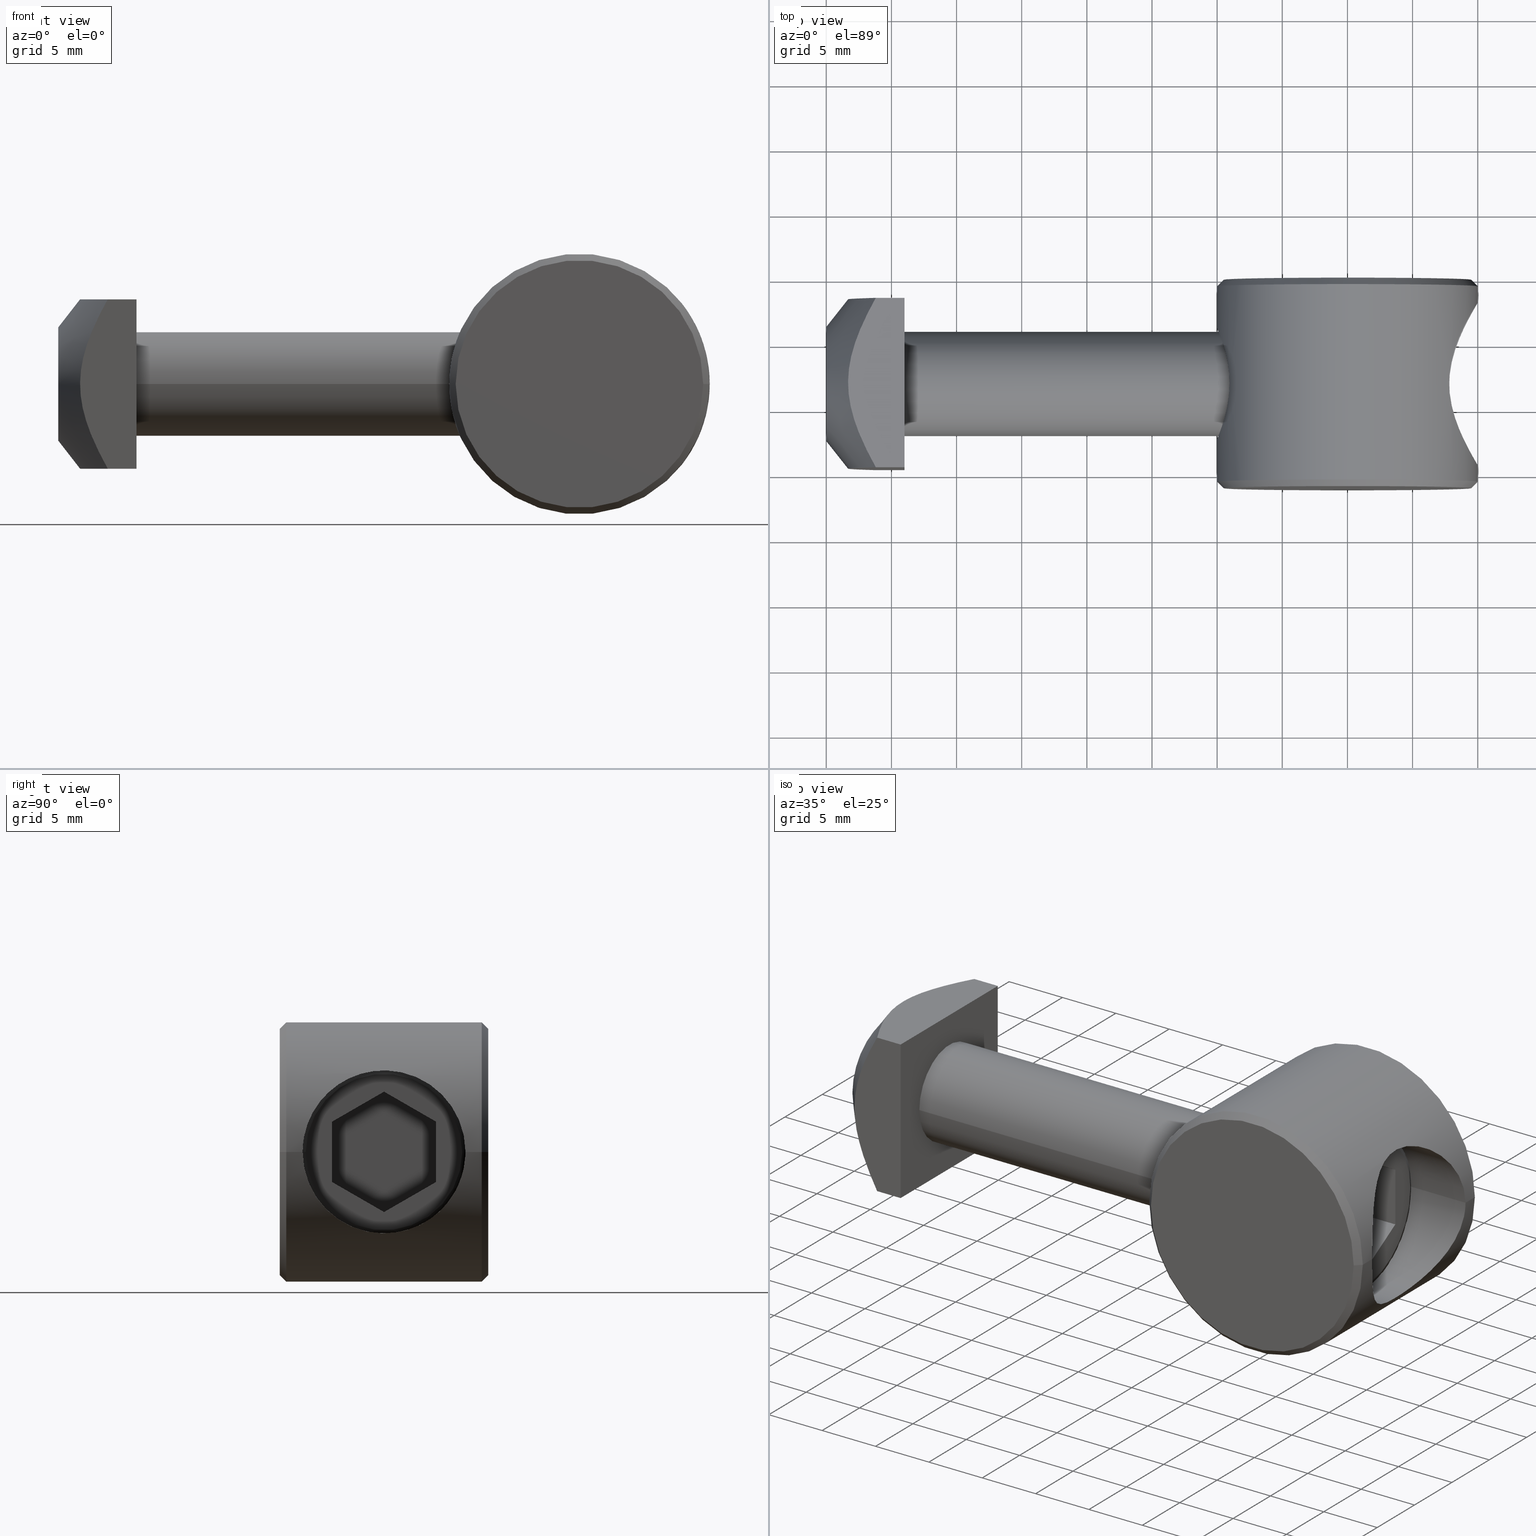
[diagram: canonical four-view strip — front | top / right | iso, engineering-drawing reading convention]
A machine part, canonical four-view strip (front | top / right | iso — engineering-drawing reading convention). The complete STEP part file that produces these views, byte-faithful:
ISO-10303-21;
HEADER;
/****************************************************************
 * Generated by software with PDE/Lib inside                    *
 * PDElib Version v4.4, created Mon 02/23/2004                  *
 * International Technegroup Inc. (www.iti-oh.com)              *
 ****************************************************************/
FILE_DESCRIPTION(('STEP AP203'),'2;1');
FILE_NAME('30.102.00.stp','2011-03-21T16:20:23',(''),(''),'2009.3.110','THINKDESIGN','');
FILE_SCHEMA(('CONFIG_CONTROL_DESIGN'));
ENDSEC;
DATA;
#2=CARTESIAN_POINT('',(-18.999999999922693,-15.999999999936335,-18.999999999922693));
#3=DIRECTION('',(0.0,1.0,0.0));
#4=DIRECTION('',(0.0,0.0,1.0));
#5=AXIS2_PLACEMENT_3D('',#2,#3,#4);
#6=PLANE('',#5);
#7=CARTESIAN_POINT('',(9.499999999961347,-15.999999999936335,0.0));
#8=VERTEX_POINT('',#7);
#9=CARTESIAN_POINT('',(-9.499999999961347,-15.999999999936335,0.0));
#10=VERTEX_POINT('',#9);
#11=CARTESIAN_POINT('',(0.0,-15.999999999936335,0.0));
#12=DIRECTION('',(0.0,-1.0,0.0));
#13=DIRECTION('',(1.0,0.0,0.0));
#14=AXIS2_PLACEMENT_3D('',#11,#12,#13);
#15=CIRCLE('',#14,9.499999999961347);
#16=EDGE_CURVE('',#8,#10,#15,.T.);
#17=ORIENTED_EDGE('',*,*,#16,.T.);
#18=CARTESIAN_POINT('',(0.0,-15.999999999936335,0.0));
#19=DIRECTION('',(0.0,-1.0,0.0));
#20=DIRECTION('',(1.0,0.0,0.0));
#21=AXIS2_PLACEMENT_3D('',#18,#19,#20);
#22=CIRCLE('',#21,9.499999999961347);
#23=EDGE_CURVE('',#10,#8,#22,.T.);
#24=ORIENTED_EDGE('',*,*,#23,.T.);
#25=EDGE_LOOP('',(#17,#24));
#26=FACE_OUTER_BOUND('',#25,.T.);
#27=ADVANCED_FACE('',(#26),#6,.F.);
#28=CARTESIAN_POINT('',(9.499999999961347,-15.999999999936335,0.0));
#29=CARTESIAN_POINT('',(9.499999999961347,-15.999999999936335,9.499999999961347));
#30=CARTESIAN_POINT('',(0.0,-15.999999999936335,9.499999999961347));
#31=CARTESIAN_POINT('',(-9.499999999961347,-15.999999999936335,9.499999999961347));
#32=CARTESIAN_POINT('',(-9.499999999961347,-15.999999999936335,0.0));
#33=CARTESIAN_POINT('',(-9.499999999961347,-15.999999999936335,-9.499999999961347));
#34=CARTESIAN_POINT('',(0.0,-15.999999999936335,-9.499999999961347));
#35=CARTESIAN_POINT('',(9.499999999961347,-15.999999999936335,-9.499999999961347));
#36=CARTESIAN_POINT('',(9.499999999961347,-15.999999999936335,0.0));
#37=CARTESIAN_POINT('',(9.999999999959528,-15.499999999938154,0.0));
#38=CARTESIAN_POINT('',(9.999999999959528,-15.499999999938154,9.999999999959528));
#39=CARTESIAN_POINT('',(0.0,-15.499999999938154,9.999999999959528));
#40=CARTESIAN_POINT('',(-9.999999999959528,-15.499999999938154,9.999999999959528));
#41=CARTESIAN_POINT('',(-9.999999999959528,-15.499999999938154,0.0));
#42=CARTESIAN_POINT('',(-9.999999999959528,-15.499999999938154,-9.999999999959528));
#43=CARTESIAN_POINT('',(0.0,-15.499999999938154,-9.999999999959528));
#44=CARTESIAN_POINT('',(9.999999999959528,-15.499999999938154,-9.999999999959528));
#45=CARTESIAN_POINT('',(9.999999999959528,-15.499999999938154,0.0));
#53=(BOUNDED_SURFACE()B_SPLINE_SURFACE(2,1,((#28,#37),(#29,#38),(#30,#39),(#31,#40),(#32,#41),(#33,#42),(#34,#43),(#35,#44),(#36,#45)),.UNSPECIFIED.,.T.,.F.,.U.)B_SPLINE_SURFACE_WITH_KNOTS((3,2,2,2,3),(2,2),(0.0,0.250000000000000,0.500000000000000,0.750000000000000,1.0),(0.0,0.707106781183975),.UNSPECIFIED.)GEOMETRIC_REPRESENTATION_ITEM()RATIONAL_B_SPLINE_SURFACE(((1.0,1.0),(0.707106781186548,0.707106781186548),(1.0,1.0),(0.707106781186548,0.707106781186548),(1.0,1.0),(0.707106781186548,0.707106781186548),(1.0,1.0),(0.707106781186548,0.707106781186548),(1.0,1.0)))REPRESENTATION_ITEM('')SURFACE());
#54=CARTESIAN_POINT('',(9.999999999959528,-15.499999999938154,0.0));
#55=VERTEX_POINT('',#54);
#56=CARTESIAN_POINT('',(9.499999999961347,-15.999999999936335,0.0));
#57=DIRECTION('',(0.707106781186548,0.707106781186548,0.0));
#58=VECTOR('',#57,0.707106781183975);
#59=LINE('',#56,#58);
#60=EDGE_CURVE('',#8,#55,#59,.T.);
#61=ORIENTED_EDGE('',*,*,#60,.T.);
#62=CARTESIAN_POINT('',(-9.999999999959528,-15.499999999938154,0.0));
#63=VERTEX_POINT('',#62);
#64=CARTESIAN_POINT('',(0.0,-15.499999999938154,0.0));
#65=DIRECTION('',(0.0,-1.0,0.0));
#66=DIRECTION('',(1.0,0.0,0.0));
#67=AXIS2_PLACEMENT_3D('',#64,#65,#66);
#68=CIRCLE('',#67,9.999999999959528);
#69=EDGE_CURVE('',#55,#63,#68,.T.);
#70=ORIENTED_EDGE('',*,*,#69,.T.);
#71=CARTESIAN_POINT('',(0.0,-15.499999999938154,0.0));
#72=DIRECTION('',(0.0,-1.0,0.0));
#73=DIRECTION('',(1.0,0.0,0.0));
#74=AXIS2_PLACEMENT_3D('',#71,#72,#73);
#75=CIRCLE('',#74,9.999999999959528);
#76=EDGE_CURVE('',#63,#55,#75,.T.);
#77=ORIENTED_EDGE('',*,*,#76,.T.);
#78=ORIENTED_EDGE('',*,*,#60,.F.);
#79=ORIENTED_EDGE('',*,*,#23,.F.);
#80=ORIENTED_EDGE('',*,*,#16,.F.);
#81=EDGE_LOOP('',(#61,#70,#77,#78,#79,#80));
#82=FACE_OUTER_BOUND('',#81,.T.);
#83=ADVANCED_FACE('',(#82),#53,.F.);
#84=CARTESIAN_POINT('',(0.0,-15.499999999938154,0.0));
#85=DIRECTION('',(0.0,-1.0,0.0));
#86=DIRECTION('',(1.0,0.0,0.0));
#87=AXIS2_PLACEMENT_3D('',#84,#85,#86);
#88=CYLINDRICAL_SURFACE('',#87,9.999999999959528);
#89=CARTESIAN_POINT('',(9.999999999959528,-14.249999999943157,0.0));
#90=VERTEX_POINT('',#89);
#91=CARTESIAN_POINT('',(9.999999999959528,-15.499999999938154,0.0));
#92=DIRECTION('',(0.0,1.0,0.0));
#93=VECTOR('',#92,1.249999999994998);
#94=LINE('',#91,#93);
#95=EDGE_CURVE('',#55,#90,#94,.T.);
#96=ORIENTED_EDGE('',*,*,#95,.T.);
#97=CARTESIAN_POINT('',(9.999999999959528,-1.749999999993179,0.0));
#98=VERTEX_POINT('',#97);
#99=CARTESIAN_POINT('',(9.999999999959528,-1.749999999993179,0.0));
#100=CARTESIAN_POINT('',(9.999999999959528,-1.749999999993179,0.381015843201705));
#101=CARTESIAN_POINT('',(9.947957659345320,-1.832938887847377,1.281563881260674));
#102=CARTESIAN_POINT('',(9.697736779683510,-2.239573534965075,2.559871248971563));
#103=CARTESIAN_POINT('',(9.284825202294996,-2.958299514674309,3.775362180584778));
#104=CARTESIAN_POINT('',(8.809040863385235,-3.883419976227742,4.770329605695938));
#105=CARTESIAN_POINT('',(8.347865997365716,-4.977720789796877,5.521924238923512));
#106=CARTESIAN_POINT('',(8.002557703722687,-6.127620150830353,6.001518528179147));
#107=CARTESIAN_POINT('',(7.809952091599826,-7.289382260383718,6.245889052062280));
#108=CARTESIAN_POINT('',(7.789228727664067,-8.510792638957810,6.271132108756628));
#109=CARTESIAN_POINT('',(7.974317985883772,-9.779853585514047,6.039709362789278));
#110=CARTESIAN_POINT('',(8.322108371069589,-10.942544321370406,5.559750873904815));
#111=CARTESIAN_POINT('',(8.771024422211212,-12.033803947806973,4.833294514281571));
#112=CARTESIAN_POINT('',(9.167829441273625,-12.818624201458533,4.033964991664595));
#113=CARTESIAN_POINT('',(9.549013468415069,-13.506603500023175,3.024815617803477));
#114=CARTESIAN_POINT('',(9.822036084176943,-13.963440941070530,2.015079126254909));
#115=CARTESIAN_POINT('',(9.974251518510300,-14.208891361938186,0.908140928554337));
#116=CARTESIAN_POINT('',(9.999999999959528,-14.249999999943157,0.265919495107419));
#117=CARTESIAN_POINT('',(9.999999999959528,-14.249999999943157,3.827021E-016));
#118=B_SPLINE_CURVE_WITH_KNOTS('',3,(#99,#100,#101,#102,#103,#104,#105,#106,#107,#108,#109,#110,#111,#112,#113,#114,#115,#116,#117),.UNSPECIFIED.,.F.,.U.,(4,1,1,1,1,1,1,1,1,1,1,1,1,1,1,1,4),(0.0,1.145222325022053,2.697930442561629,4.057293072373303,5.533657046003965,6.992516953234051,8.250127894240462,9.391558921312766,10.579049367483725,11.887746662872329,13.269199461047972,14.468931767759889,16.029583632758179,16.811922507863162,18.300722700457698,19.427640060388175,20.226139923815310),.UNSPECIFIED.);
#119=EDGE_CURVE('',#98,#90,#118,.T.);
#120=ORIENTED_EDGE('',*,*,#119,.F.);
#121=CARTESIAN_POINT('',(9.999999999959528,-0.499999999998181,0.0));
#122=VERTEX_POINT('',#121);
#123=CARTESIAN_POINT('',(9.999999999959528,-1.749999999993179,0.0));
#124=DIRECTION('',(0.0,1.0,0.0));
#125=VECTOR('',#124,1.249999999994998);
#126=LINE('',#123,#125);
#127=EDGE_CURVE('',#98,#122,#126,.T.);
#128=ORIENTED_EDGE('',*,*,#127,.T.);
#129=CARTESIAN_POINT('',(-9.999999999959528,-0.499999999998181,0.0));
#130=VERTEX_POINT('',#129);
#131=CARTESIAN_POINT('',(0.0,-0.499999999998181,0.0));
#132=DIRECTION('',(0.0,-1.0,0.0));
#133=DIRECTION('',(1.0,0.0,0.0));
#134=AXIS2_PLACEMENT_3D('',#131,#132,#133);
#135=CIRCLE('',#134,9.999999999959528);
#136=EDGE_CURVE('',#122,#130,#135,.T.);
#137=ORIENTED_EDGE('',*,*,#136,.T.);
#138=CARTESIAN_POINT('',(0.0,-0.499999999998181,0.0));
#139=DIRECTION('',(0.0,-1.0,0.0));
#140=DIRECTION('',(1.0,0.0,0.0));
#141=AXIS2_PLACEMENT_3D('',#138,#139,#140);
#142=CIRCLE('',#141,9.999999999959528);
#143=EDGE_CURVE('',#130,#122,#142,.T.);
#144=ORIENTED_EDGE('',*,*,#143,.T.);
#145=ORIENTED_EDGE('',*,*,#127,.F.);
#146=CARTESIAN_POINT('',(9.999999999959528,-14.249999999943157,-8.419447E-016));
#147=CARTESIAN_POINT('',(9.999999999959528,-14.249999999943157,-0.265919495107419));
#148=CARTESIAN_POINT('',(9.974251369092599,-14.208891031370058,-0.908141016118147));
#149=CARTESIAN_POINT('',(9.822036947554807,-13.963442851212676,-2.015078620281065));
#150=CARTESIAN_POINT('',(9.539857910370756,-13.491281962398261,-3.058665095301487));
#151=CARTESIAN_POINT('',(9.142193565784055,-12.771464110272063,-4.094703994506850));
#152=CARTESIAN_POINT('',(8.743546403745768,-11.972688836616271,-4.879327376255214));
#153=CARTESIAN_POINT('',(8.310682359378916,-10.904407152021577,-5.575510076607611));
#154=CARTESIAN_POINT('',(7.974322810217927,-9.779852238146759,-6.039705304843236));
#155=CARTESIAN_POINT('',(7.789227108383329,-8.510792786188631,-6.271133414347703));
#156=CARTESIAN_POINT('',(7.809954080353691,-7.289382781434142,-6.245887578480629));
#157=CARTESIAN_POINT('',(8.002551199096615,-6.127617926032144,-6.001523251476472));
#158=CARTESIAN_POINT('',(8.359872593293858,-4.937847789605257,-5.505268240471716));
#159=CARTESIAN_POINT('',(8.834492618747845,-3.829239223314289,-4.727067783865609));
#160=CARTESIAN_POINT('',(9.306625334590081,-2.920104361649464,-3.716451334742668));
#161=CARTESIAN_POINT('',(9.702951377001682,-2.231089900884399,-2.533216449917706));
#162=CARTESIAN_POINT('',(9.947957221571869,-1.832941699275580,-1.281569455158594));
#163=CARTESIAN_POINT('',(9.999999999959528,-1.749999999993179,-0.381015843201429));
#164=CARTESIAN_POINT('',(9.999999999959528,-1.749999999993179,-1.990051E-015));
#165=B_SPLINE_CURVE_WITH_KNOTS('',3,(#146,#147,#148,#149,#150,#151,#152,#153,#154,#155,#156,#157,#158,#159,#160,#161,#162,#163,#164),.UNSPECIFIED.,.F.,.U.,(4,1,1,1,1,1,1,1,1,1,1,1,1,1,1,1,4),(0.0,0.798499863427133,1.925417223357597,3.414217415952128,4.310462581328264,5.884816078636793,6.956940462767391,8.338393260942844,9.647090556331563,10.834581002504386,11.976012029575180,13.233622970581315,14.826291382380839,16.253369047003972,17.528209481254116,19.080917598794173,20.226139923815342),.UNSPECIFIED.);
#166=EDGE_CURVE('',#90,#98,#165,.T.);
#167=ORIENTED_EDGE('',*,*,#166,.F.);
#168=ORIENTED_EDGE('',*,*,#95,.F.);
#169=ORIENTED_EDGE('',*,*,#76,.F.);
#170=ORIENTED_EDGE('',*,*,#69,.F.);
#171=EDGE_LOOP('',(#96,#120,#128,#137,#144,#145,#167,#168,#169,#170));
#172=FACE_OUTER_BOUND('',#171,.T.);
#173=CARTESIAN_POINT('',(-9.999983732940923,-12.249982080860891,0.000006477218801));
#174=VERTEX_POINT('',#173);
#175=CARTESIAN_POINT('',(-9.999999999959528,-3.749999987356659,0.0));
#176=VERTEX_POINT('',#175);
#177=CARTESIAN_POINT('',(-9.999983732940923,-12.249982080860891,0.000006477218801));
#178=CARTESIAN_POINT('',(-9.999988774675064,-12.249987539861845,0.089055018410211));
#179=CARTESIAN_POINT('',(-9.995207243289356,-12.238684468192098,0.450047377306744));
#180=CARTESIAN_POINT('',(-9.950635028848865,-12.133866845296780,1.103355818775354));
#181=CARTESIAN_POINT('',(-9.829441169811616,-11.836814996614976,1.893150329896461));
#182=CARTESIAN_POINT('',(-9.613635245017576,-11.260228334997919,2.813489901989323));
#183=CARTESIAN_POINT('',(-9.364318234540860,-10.468376348397214,3.528757979871561));
#184=CARTESIAN_POINT('',(-9.167264336273547,-9.513994257861668,3.999189544668382));
#185=CARTESIAN_POINT('',(-9.068515066761847,-8.721162331576579,4.215249880642107));
#186=CARTESIAN_POINT('',(-9.040086156430789,-7.901571399428121,4.274970596696205));
#187=CARTESIAN_POINT('',(-9.087902364232832,-7.057724668672563,4.173909419524836));
#188=CARTESIAN_POINT('',(-9.207526282221352,-6.257559423515431,3.907732072020806));
#189=CARTESIAN_POINT('',(-9.405047257210299,-5.403315631425812,3.416892847865429));
#190=CARTESIAN_POINT('',(-9.617838864341138,-4.733644494583587,2.778804613414222));
#191=CARTESIAN_POINT('',(-9.834631330282718,-4.146561558623944,1.882781524271937));
#192=CARTESIAN_POINT('',(-9.969672870559862,-3.820970957081045,0.989806707604019));
#193=CARTESIAN_POINT('',(-9.999999999959528,-3.749999987356659,0.282963120636105));
#194=CARTESIAN_POINT('',(-9.999999999959528,-3.749999987356659,6.123234E-016));
#195=B_SPLINE_CURVE_WITH_KNOTS('',3,(#177,#178,#179,#180,#181,#182,#183,#184,#185,#186,#187,#188,#189,#190,#191,#192,#193,#194),.UNSPECIFIED.,.F.,.U.,(4,1,1,1,1,1,1,1,1,1,1,1,1,1,1,4),(13.516109497517022,13.783240092816724,14.599033092715080,15.494959289198393,16.325503793857958,17.905616228712169,18.730905387086690,19.556495984267631,20.375394161005190,21.183668998854586,22.096117120096153,22.914554664479532,24.184713777011712,24.914853499883737,26.181706597453545,27.032218995034043),.UNSPECIFIED.);
#196=EDGE_CURVE('',#174,#176,#195,.T.);
#197=ORIENTED_EDGE('',*,*,#196,.F.);
#198=CARTESIAN_POINT('',(-9.999999999959528,-3.749999987356659,9.184851E-017));
#199=CARTESIAN_POINT('',(-9.999999999959528,-3.749999987356659,-0.325110920616279));
#200=CARTESIAN_POINT('',(-9.963549711520045,-3.834976516472125,-1.059691554546177));
#201=CARTESIAN_POINT('',(-9.826096024331946,-4.169481288462521,-1.911817925566421));
#202=CARTESIAN_POINT('',(-9.641773842558450,-4.670194494081898,-2.679591267240309));
#203=CARTESIAN_POINT('',(-9.459192355691812,-5.225335061137685,-3.264559660082151));
#204=CARTESIAN_POINT('',(-9.262070016192411,-5.990002871814340,-3.778871077212999));
#205=CARTESIAN_POINT('',(-9.119887693907003,-6.791355286499766,-4.104729371643631));
#206=CARTESIAN_POINT('',(-9.047325911338703,-7.623940615832453,-4.259852542203420));
#207=CARTESIAN_POINT('',(-9.050900662414279,-8.471994550340696,-4.252334092011863));
#208=CARTESIAN_POINT('',(-9.131126050221610,-9.282790203806599,-4.080224327609351));
#209=CARTESIAN_POINT('',(-9.286750652903265,-10.127202799072620,-3.718815682599768));
#210=CARTESIAN_POINT('',(-9.481666427233449,-10.846872438215541,-3.202101351410471));
#211=CARTESIAN_POINT('',(-9.696386936170711,-11.488217025988433,-2.483481192677694));
#212=CARTESIAN_POINT('',(-9.882399661943509,-11.971160358760699,-1.635028126368954));
#213=CARTESIAN_POINT('',(-9.983801219555545,-12.211871046107641,-0.755940561819114));
#214=CARTESIAN_POINT('',(-9.999972897478614,-12.249970348628008,-0.191372537382255));
#215=CARTESIAN_POINT('',(-9.999983732940923,-12.249982080860891,0.000006477218801));
#216=B_SPLINE_CURVE_WITH_KNOTS('',3,(#198,#199,#200,#201,#202,#203,#204,#205,#206,#207,#208,#209,#210,#211,#212,#213,#214,#215),.UNSPECIFIED.,.F.,.U.,(4,1,1,1,1,1,1,1,1,1,1,1,1,1,1,4),(0.0,0.977810495569409,2.199736816051783,2.748447789383135,3.777033952231959,4.663895268096754,5.561294863036336,6.391762225949962,7.199580592466678,8.091334669930641,8.874058722582140,9.982057489037087,10.791380773622837,11.822525714422721,12.942004751787817,13.516109497517022),.UNSPECIFIED.);
#217=EDGE_CURVE('',#176,#174,#216,.T.);
#218=ORIENTED_EDGE('',*,*,#217,.F.);
#219=EDGE_LOOP('',(#197,#218));
#220=FACE_BOUND('',#219,.T.);
#221=ADVANCED_FACE('',(#172,#220),#88,.T.);
#222=CARTESIAN_POINT('',(9.999999999959528,-0.499999999998181,0.0));
#223=CARTESIAN_POINT('',(9.999999999959528,-0.499999999998181,9.999999999959528));
#224=CARTESIAN_POINT('',(0.0,-0.499999999998181,9.999999999959528));
#225=CARTESIAN_POINT('',(-9.999999999959528,-0.499999999998181,9.999999999959528));
#226=CARTESIAN_POINT('',(-9.999999999959528,-0.499999999998181,0.0));
#227=CARTESIAN_POINT('',(-9.999999999959528,-0.499999999998181,-9.999999999959528));
#228=CARTESIAN_POINT('',(0.0,-0.499999999998181,-9.999999999959528));
#229=CARTESIAN_POINT('',(9.999999999959528,-0.499999999998181,-9.999999999959528));
#230=CARTESIAN_POINT('',(9.999999999959528,-0.499999999998181,0.0));
#231=CARTESIAN_POINT('',(9.499999999961347,0.0,0.0));
#232=CARTESIAN_POINT('',(9.499999999961347,0.0,9.499999999961347));
#233=CARTESIAN_POINT('',(0.0,0.0,9.499999999961347));
#234=CARTESIAN_POINT('',(-9.499999999961347,0.0,9.499999999961347));
#235=CARTESIAN_POINT('',(-9.499999999961347,0.0,0.0));
#236=CARTESIAN_POINT('',(-9.499999999961347,0.0,-9.499999999961347));
#237=CARTESIAN_POINT('',(0.0,0.0,-9.499999999961347));
#238=CARTESIAN_POINT('',(9.499999999961347,0.0,-9.499999999961347));
#239=CARTESIAN_POINT('',(9.499999999961347,0.0,0.0));
#247=(BOUNDED_SURFACE()B_SPLINE_SURFACE(2,1,((#222,#231),(#223,#232),(#224,#233),(#225,#234),(#226,#235),(#227,#236),(#228,#237),(#229,#238),(#230,#239)),.UNSPECIFIED.,.T.,.F.,.U.)B_SPLINE_SURFACE_WITH_KNOTS((3,2,2,2,3),(2,2),(0.0,0.250000000000000,0.500000000000000,0.750000000000000,1.0),(0.0,0.707106781183975),.UNSPECIFIED.)GEOMETRIC_REPRESENTATION_ITEM()RATIONAL_B_SPLINE_SURFACE(((1.0,1.0),(0.707106781186548,0.707106781186548),(1.0,1.0),(0.707106781186548,0.707106781186548),(1.0,1.0),(0.707106781186548,0.707106781186548),(1.0,1.0),(0.707106781186548,0.707106781186548),(1.0,1.0)))REPRESENTATION_ITEM('')SURFACE());
#248=CARTESIAN_POINT('',(9.499999999961347,0.0,0.0));
#249=VERTEX_POINT('',#248);
#250=CARTESIAN_POINT('',(9.999999999959528,-0.499999999998181,0.0));
#251=DIRECTION('',(-0.707106781186548,0.707106781186548,0.0));
#252=VECTOR('',#251,0.707106781183975);
#253=LINE('',#250,#252);
#254=EDGE_CURVE('',#122,#249,#253,.T.);
#255=ORIENTED_EDGE('',*,*,#254,.T.);
#256=CARTESIAN_POINT('',(-9.499999999961347,0.0,0.0));
#257=VERTEX_POINT('',#256);
#258=CARTESIAN_POINT('',(0.0,0.0,0.0));
#259=DIRECTION('',(0.0,-1.0,0.0));
#260=DIRECTION('',(1.0,0.0,0.0));
#261=AXIS2_PLACEMENT_3D('',#258,#259,#260);
#262=CIRCLE('',#261,9.499999999961347);
#263=EDGE_CURVE('',#249,#257,#262,.T.);
#264=ORIENTED_EDGE('',*,*,#263,.T.);
#265=CARTESIAN_POINT('',(0.0,0.0,0.0));
#266=DIRECTION('',(0.0,-1.0,0.0));
#267=DIRECTION('',(1.0,0.0,0.0));
#268=AXIS2_PLACEMENT_3D('',#265,#266,#267);
#269=CIRCLE('',#268,9.499999999961347);
#270=EDGE_CURVE('',#257,#249,#269,.T.);
#271=ORIENTED_EDGE('',*,*,#270,.T.);
#272=ORIENTED_EDGE('',*,*,#254,.F.);
#273=ORIENTED_EDGE('',*,*,#143,.F.);
#274=ORIENTED_EDGE('',*,*,#136,.F.);
#275=EDGE_LOOP('',(#255,#264,#271,#272,#273,#274));
#276=FACE_OUTER_BOUND('',#275,.T.);
#277=ADVANCED_FACE('',(#276),#247,.F.);
#278=CARTESIAN_POINT('',(18.999999999922693,0.0,-18.999999999922693));
#279=DIRECTION('',(0.0,-1.0,0.0));
#280=DIRECTION('',(0.0,0.0,1.0));
#281=AXIS2_PLACEMENT_3D('',#278,#279,#280);
#282=PLANE('',#281);
#283=ORIENTED_EDGE('',*,*,#270,.F.);
#284=ORIENTED_EDGE('',*,*,#263,.F.);
#285=EDGE_LOOP('',(#283,#284));
#286=FACE_OUTER_BOUND('',#285,.T.);
#287=ADVANCED_FACE('',(#286),#282,.F.);
#288=CARTESIAN_POINT('',(19.000000000039563,-7.999999999968168,0.0));
#289=DIRECTION('',(1.0,0.0,0.0));
#290=DIRECTION('',(0.0,1.0,0.0));
#291=AXIS2_PLACEMENT_3D('',#288,#289,#290);
#292=CYLINDRICAL_SURFACE('',#291,6.249999999974989);
#293=CARTESIAN_POINT('',(-4.547474E-013,-14.249999999943157,0.0));
#294=VERTEX_POINT('',#293);
#295=CARTESIAN_POINT('',(-4.547474E-013,-1.749999999993179,0.0));
#296=VERTEX_POINT('',#295);
#297=CARTESIAN_POINT('',(-4.547474E-013,-7.999999999968168,0.0));
#298=DIRECTION('',(1.0,0.0,0.0));
#299=DIRECTION('',(0.0,1.0,0.0));
#300=AXIS2_PLACEMENT_3D('',#297,#298,#299);
#301=CIRCLE('',#300,6.249999999974989);
#302=EDGE_CURVE('',#294,#296,#301,.T.);
#303=ORIENTED_EDGE('',*,*,#302,.F.);
#304=CARTESIAN_POINT('',(-4.547474E-013,-7.999999999968168,0.0));
#305=DIRECTION('',(1.0,0.0,0.0));
#306=DIRECTION('',(0.0,1.0,0.0));
#307=AXIS2_PLACEMENT_3D('',#304,#305,#306);
#308=CIRCLE('',#307,6.249999999974989);
#309=EDGE_CURVE('',#296,#294,#308,.T.);
#310=ORIENTED_EDGE('',*,*,#309,.F.);
#311=CARTESIAN_POINT('',(9.999999999959528,-1.749999999993179,0.0));
#312=DIRECTION('',(-1.0,0.0,0.0));
#313=VECTOR('',#312,9.999999999959982);
#314=LINE('',#311,#313);
#315=EDGE_CURVE('',#98,#296,#314,.T.);
#316=ORIENTED_EDGE('',*,*,#315,.F.);
#317=ORIENTED_EDGE('',*,*,#119,.T.);
#318=ORIENTED_EDGE('',*,*,#166,.T.);
#319=ORIENTED_EDGE('',*,*,#315,.T.);
#320=EDGE_LOOP('',(#303,#310,#316,#317,#318,#319));
#321=FACE_OUTER_BOUND('',#320,.T.);
#322=ADVANCED_FACE('',(#321),#292,.F.);
#323=CARTESIAN_POINT('',(-4.547474E-013,4.499999999981810,-12.499999999949978));
#324=DIRECTION('',(1.0,0.0,0.0));
#325=DIRECTION('',(0.0,0.0,1.0));
#326=AXIS2_PLACEMENT_3D('',#323,#324,#325);
#327=PLANE('',#326);
#328=ORIENTED_EDGE('',*,*,#309,.T.);
#329=ORIENTED_EDGE('',*,*,#302,.T.);
#330=EDGE_LOOP('',(#328,#329));
#331=FACE_OUTER_BOUND('',#330,.T.);
#332=CARTESIAN_POINT('',(-4.547474E-013,-12.250000012579676,0.0));
#333=VERTEX_POINT('',#332);
#334=CARTESIAN_POINT('',(-4.547474E-013,-3.749999987356659,0.0));
#335=VERTEX_POINT('',#334);
#336=CARTESIAN_POINT('',(-4.547474E-013,-7.999999999968168,0.0));
#337=DIRECTION('',(1.0,0.0,0.0));
#338=DIRECTION('',(0.0,1.0,0.0));
#339=AXIS2_PLACEMENT_3D('',#336,#337,#338);
#340=CIRCLE('',#339,4.250000012611508);
#341=EDGE_CURVE('',#333,#335,#340,.T.);
#342=ORIENTED_EDGE('',*,*,#341,.F.);
#343=CARTESIAN_POINT('',(-4.547474E-013,-7.999999999968168,0.0));
#344=DIRECTION('',(1.0,0.0,0.0));
#345=DIRECTION('',(0.0,1.0,0.0));
#346=AXIS2_PLACEMENT_3D('',#343,#344,#345);
#347=CIRCLE('',#346,4.250000012611508);
#348=EDGE_CURVE('',#335,#333,#347,.T.);
#349=ORIENTED_EDGE('',*,*,#348,.F.);
#350=EDGE_LOOP('',(#342,#349));
#351=FACE_BOUND('',#350,.T.);
#352=ADVANCED_FACE('',(#331,#351),#327,.T.);
#353=CARTESIAN_POINT('',(-4.547474E-013,-7.999999999968168,0.0));
#354=DIRECTION('',(1.0,0.0,0.0));
#355=DIRECTION('',(0.0,1.0,0.0));
#356=AXIS2_PLACEMENT_3D('',#353,#354,#355);
#357=CYLINDRICAL_SURFACE('',#356,4.250000012611508);
#358=ORIENTED_EDGE('',*,*,#348,.T.);
#359=ORIENTED_EDGE('',*,*,#341,.T.);
#360=CARTESIAN_POINT('',(-4.547474E-013,-3.749999987356659,0.0));
#361=DIRECTION('',(-1.0,0.0,0.0));
#362=VECTOR('',#361,9.999999999959073);
#363=LINE('',#360,#362);
#364=EDGE_CURVE('',#335,#176,#363,.T.);
#365=ORIENTED_EDGE('',*,*,#364,.T.);
#366=ORIENTED_EDGE('',*,*,#217,.T.);
#367=ORIENTED_EDGE('',*,*,#196,.T.);
#368=ORIENTED_EDGE('',*,*,#364,.F.);
#369=EDGE_LOOP('',(#358,#359,#365,#366,#367,#368));
#370=FACE_OUTER_BOUND('',#369,.T.);
#371=ADVANCED_FACE('',(#370),#357,.F.);
#372=CLOSED_SHELL('',(#27,#83,#221,#277,#287,#322,#352,#371));
#373=MANIFOLD_SOLID_BREP('',#372);
#374=CARTESIAN_POINT('',(-33.999999999840384,-1.499999999994088,-6.499999999999998));
#375=DIRECTION('',(0.0,1.0,0.0));
#376=DIRECTION('',(-1.0,0.0,0.0));
#377=AXIS2_PLACEMENT_3D('',#374,#375,#376);
#378=PLANE('',#377);
#379=CARTESIAN_POINT('',(-33.999999999840384,-1.499999999994088,-6.499999999999998));
#380=VERTEX_POINT('',#379);
#381=CARTESIAN_POINT('',(-36.201733334651635,-1.499999999994088,-6.499999999999998));
#382=VERTEX_POINT('',#381);
#383=CARTESIAN_POINT('',(-33.999999999840384,-1.499999999994088,-6.499999999999998));
#384=DIRECTION('',(-1.0,0.0,0.0));
#385=VECTOR('',#384,2.201733334811109);
#386=LINE('',#383,#385);
#387=EDGE_CURVE('',#380,#382,#386,.T.);
#388=ORIENTED_EDGE('',*,*,#387,.T.);
#389=CARTESIAN_POINT('',(-38.327633036136831,-1.499999999994088,0.0));
#390=VERTEX_POINT('',#389);
#391=CARTESIAN_POINT('',(-36.201733334651635,-1.499999999994088,-6.499999999999794));
#392=CARTESIAN_POINT('',(-36.529557071315139,-1.499999999994088,-5.912848338149615));
#393=CARTESIAN_POINT('',(-37.039856128614701,-1.499999999982265,-4.935940255374428));
#394=CARTESIAN_POINT('',(-37.709078106545803,-1.500000000022737,-3.366536166990874));
#395=CARTESIAN_POINT('',(-38.107651113880365,-1.499999999867669,-2.072374110626530));
#396=CARTESIAN_POINT('',(-38.296588462757882,-1.500000000217824,-0.881700095806656));
#397=CARTESIAN_POINT('',(-38.327633036136831,-1.499999999994088,-0.282034297807596));
#398=CARTESIAN_POINT('',(-38.327633036136831,-1.499999999994088,-8.881784E-016));
#399=B_SPLINE_CURVE_WITH_KNOTS('',3,(#391,#392,#393,#394,#395,#396,#397,#398),.UNSPECIFIED.,.F.,.U.,(4,1,1,1,1,4),(0.0,2.017883608308912,3.303099161466276,5.115860811620169,6.067965354631358,6.914426426632446),.UNSPECIFIED.);
#400=EDGE_CURVE('',#382,#390,#399,.T.);
#401=ORIENTED_EDGE('',*,*,#400,.T.);
#402=CARTESIAN_POINT('',(-36.201733334651635,-1.499999999994088,6.500000000000001));
#403=VERTEX_POINT('',#402);
#404=CARTESIAN_POINT('',(-38.327633036136831,-1.499999999994088,0.0));
#405=CARTESIAN_POINT('',(-38.327633036136831,-1.499999999994088,0.282034297807597));
#406=CARTESIAN_POINT('',(-38.296588462757427,-1.500000000216915,0.881700095806656));
#407=CARTESIAN_POINT('',(-38.107651113880365,-1.499999999866304,2.072374110626529));
#408=CARTESIAN_POINT('',(-37.709078106546713,-1.500000000023192,3.366536166990874));
#409=CARTESIAN_POINT('',(-37.039856128614247,-1.499999999982265,4.935940255374426));
#410=CARTESIAN_POINT('',(-36.529557071315139,-1.499999999994088,5.912848338149615));
#411=CARTESIAN_POINT('',(-36.201733334651635,-1.499999999994088,6.499999999999795));
#412=B_SPLINE_CURVE_WITH_KNOTS('',3,(#404,#405,#406,#407,#408,#409,#410,#411),.UNSPECIFIED.,.F.,.U.,(4,1,1,1,1,4),(0.0,0.846461072001089,1.798565615012273,3.611327265166168,4.896542818323531,6.914426426632445),.UNSPECIFIED.);
#413=EDGE_CURVE('',#390,#403,#412,.T.);
#414=ORIENTED_EDGE('',*,*,#413,.T.);
#415=CARTESIAN_POINT('',(-33.999999999840384,-1.499999999994088,6.500000000000001));
#416=VERTEX_POINT('',#415);
#417=CARTESIAN_POINT('',(-33.999999999840384,-1.499999999994088,6.500000000000001));
#418=DIRECTION('',(-1.0,0.0,0.0));
#419=VECTOR('',#418,2.201733334811109);
#420=LINE('',#417,#419);
#421=EDGE_CURVE('',#416,#403,#420,.T.);
#422=ORIENTED_EDGE('',*,*,#421,.F.);
#423=CARTESIAN_POINT('',(-33.999999999840384,-1.499999999994088,-6.499999999999998));
#424=DIRECTION('',(0.0,0.0,1.0));
#425=VECTOR('',#424,13.0);
#426=LINE('',#423,#425);
#427=EDGE_CURVE('',#380,#416,#426,.T.);
#428=ORIENTED_EDGE('',*,*,#427,.F.);
#429=EDGE_LOOP('',(#388,#401,#414,#422,#428));
#430=FACE_OUTER_BOUND('',#429,.T.);
#431=ADVANCED_FACE('',(#430),#378,.T.);
#432=CARTESIAN_POINT('',(-39.999999999840384,-1.499999999994088,-6.499999999999998));
#433=DIRECTION('',(-1.0,0.0,0.0));
#434=DIRECTION('',(0.0,-1.0,0.0));
#435=AXIS2_PLACEMENT_3D('',#432,#433,#434);
#436=PLANE('',#435);
#437=CARTESIAN_POINT('',(-39.999999999840384,-3.618002557435830,0.0));
#438=VERTEX_POINT('',#437);
#439=CARTESIAN_POINT('',(-39.999999999840384,-12.381997442500504,-2.683200E-016));
#440=VERTEX_POINT('',#439);
#441=CARTESIAN_POINT('',(-39.999999999840384,-7.999999999968168,0.0));
#442=DIRECTION('',(-1.0,-6.123234E-017,0.0));
#443=DIRECTION('',(-6.123234E-017,1.0,6.123234E-017));
#444=AXIS2_PLACEMENT_3D('',#441,#442,#443);
#445=CIRCLE('',#444,4.381997442532338);
#446=EDGE_CURVE('',#438,#440,#445,.T.);
#447=ORIENTED_EDGE('',*,*,#446,.T.);
#448=CARTESIAN_POINT('',(-39.999999999840384,-7.999999999968168,0.0));
#449=DIRECTION('',(-1.0,-6.123234E-017,0.0));
#450=DIRECTION('',(-6.123234E-017,1.0,6.123234E-017));
#451=AXIS2_PLACEMENT_3D('',#448,#449,#450);
#452=CIRCLE('',#451,4.381997442532338);
#453=EDGE_CURVE('',#440,#438,#452,.T.);
#454=ORIENTED_EDGE('',*,*,#453,.T.);
#455=EDGE_LOOP('',(#447,#454));
#456=FACE_OUTER_BOUND('',#455,.T.);
#457=CARTESIAN_POINT('',(-39.999999999840384,-4.624999999968168,0.0));
#458=VERTEX_POINT('',#457);
#459=CARTESIAN_POINT('',(-39.999999999840384,-11.374999999968168,0.0));
#460=VERTEX_POINT('',#459);
#461=CARTESIAN_POINT('',(-39.999999999840384,-7.999999999968168,0.0));
#462=DIRECTION('',(-1.0,0.0,6.123234E-017));
#463=DIRECTION('',(0.0,-1.0,0.0));
#464=AXIS2_PLACEMENT_3D('',#461,#462,#463);
#465=CIRCLE('',#464,3.375000000000000);
#466=EDGE_CURVE('',#458,#460,#465,.T.);
#467=ORIENTED_EDGE('',*,*,#466,.F.);
#468=CARTESIAN_POINT('',(-39.999999999840384,-7.999999999968168,0.0));
#469=DIRECTION('',(-1.0,0.0,6.123234E-017));
#470=DIRECTION('',(0.0,-1.0,0.0));
#471=AXIS2_PLACEMENT_3D('',#468,#469,#470);
#472=CIRCLE('',#471,3.375000000000000);
#473=EDGE_CURVE('',#460,#458,#472,.T.);
#474=ORIENTED_EDGE('',*,*,#473,.F.);
#475=EDGE_LOOP('',(#467,#474));
#476=FACE_BOUND('',#475,.T.);
#477=ADVANCED_FACE('',(#456,#476),#436,.T.);
#478=CARTESIAN_POINT('',(-39.999999999840384,-14.499999999994088,-6.499999999999998));
#479=DIRECTION('',(0.0,-1.0,0.0));
#480=DIRECTION('',(1.0,0.0,0.0));
#481=AXIS2_PLACEMENT_3D('',#478,#479,#480);
#482=PLANE('',#481);
#483=CARTESIAN_POINT('',(-33.999999999840384,-14.499999999994088,-6.499999999999998));
#484=VERTEX_POINT('',#483);
#485=CARTESIAN_POINT('',(-33.999999999840384,-14.499999999994088,6.500000000000000));
#486=VERTEX_POINT('',#485);
#487=CARTESIAN_POINT('',(-33.999999999840384,-14.499999999994088,-6.499999999999998));
#488=DIRECTION('',(0.0,0.0,1.0));
#489=VECTOR('',#488,13.0);
#490=LINE('',#487,#489);
#491=EDGE_CURVE('',#484,#486,#490,.T.);
#492=ORIENTED_EDGE('',*,*,#491,.T.);
#493=CARTESIAN_POINT('',(-36.201733334621622,-14.499999999994088,6.500000000000000));
#494=VERTEX_POINT('',#493);
#495=CARTESIAN_POINT('',(-36.201733334621686,-14.499999999994088,6.500000000000000));
#496=DIRECTION('',(1.0,0.0,0.0));
#497=VECTOR('',#496,2.201733334781302);
#498=LINE('',#495,#497);
#499=EDGE_CURVE('',#494,#486,#498,.T.);
#500=ORIENTED_EDGE('',*,*,#499,.F.);
#501=CARTESIAN_POINT('',(-36.201733334622077,-14.499999999994088,-6.499999999999998));
#502=VERTEX_POINT('',#501);
#503=CARTESIAN_POINT('',(-36.201733334621622,-14.499999999994088,6.500000000000179));
#504=CARTESIAN_POINT('',(-36.485402812584653,-14.499999999994088,5.991931221643727));
#505=CARTESIAN_POINT('',(-37.002611429278659,-14.500000000014552,5.010040436293638));
#506=CARTESIAN_POINT('',(-37.625419511695782,-14.499999999931333,3.582750773703828));
#507=CARTESIAN_POINT('',(-38.032920182501584,-14.500000000174168,2.322646331058993));
#508=CARTESIAN_POINT('',(-38.272840006071874,-14.499999999436113,1.145690457145933));
#509=CARTESIAN_POINT('',(-38.358305048656348,-14.500000000155978,-0.016868641297235));
#510=CARTESIAN_POINT('',(-38.267758671526735,-14.499999999953161,-1.188266389008622));
#511=CARTESIAN_POINT('',(-38.019011539728126,-14.500000000008640,-2.374274711454206));
#512=CARTESIAN_POINT('',(-37.606445712225650,-14.499999999979536,-3.629826402618161));
#513=CARTESIAN_POINT('',(-36.989528200458608,-14.500000000040473,-5.035309084283185));
#514=CARTESIAN_POINT('',(-36.480285229472884,-14.499999999994088,-6.001097115058364));
#515=CARTESIAN_POINT('',(-36.201733334622077,-14.499999999994088,-6.500000000000016));
#516=B_SPLINE_CURVE_WITH_KNOTS('',3,(#503,#504,#505,#506,#507,#508,#509,#510,#511,#512,#513,#514,#515),.UNSPECIFIED.,.F.,.U.,(4,1,1,1,1,1,1,1,1,1,4),(0.0,1.745971114440875,3.327371104074318,4.667530221139215,5.713079196290829,6.925453479333277,8.155282578259985,9.228116565139599,10.555282125759994,12.114432773976587,13.828893270008054),.UNSPECIFIED.);
#517=EDGE_CURVE('',#494,#502,#516,.T.);
#518=ORIENTED_EDGE('',*,*,#517,.T.);
#519=CARTESIAN_POINT('',(-36.201733334622048,-14.499999999994088,-6.499999999999998));
#520=DIRECTION('',(1.0,0.0,0.0));
#521=VECTOR('',#520,2.201733334781665);
#522=LINE('',#519,#521);
#523=EDGE_CURVE('',#502,#484,#522,.T.);
#524=ORIENTED_EDGE('',*,*,#523,.T.);
#525=EDGE_LOOP('',(#492,#500,#518,#524));
#526=FACE_OUTER_BOUND('',#525,.T.);
#527=ADVANCED_FACE('',(#526),#482,.T.);
#528=CARTESIAN_POINT('',(-33.999999999840384,-14.499999999994088,-6.499999999999998));
#529=DIRECTION('',(1.0,0.0,0.0));
#530=DIRECTION('',(0.0,1.0,0.0));
#531=AXIS2_PLACEMENT_3D('',#528,#529,#530);
#532=PLANE('',#531);
#533=ORIENTED_EDGE('',*,*,#427,.T.);
#534=CARTESIAN_POINT('',(-33.999999999840384,-14.499999999994088,6.500000000000000));
#535=DIRECTION('',(0.0,1.0,0.0));
#536=VECTOR('',#535,13.0);
#537=LINE('',#534,#536);
#538=EDGE_CURVE('',#486,#416,#537,.T.);
#539=ORIENTED_EDGE('',*,*,#538,.F.);
#540=ORIENTED_EDGE('',*,*,#491,.F.);
#541=CARTESIAN_POINT('',(-33.999999999840384,-14.499999999994088,-6.499999999999998));
#542=DIRECTION('',(0.0,1.0,0.0));
#543=VECTOR('',#542,13.0);
#544=LINE('',#541,#543);
#545=EDGE_CURVE('',#484,#380,#544,.T.);
#546=ORIENTED_EDGE('',*,*,#545,.T.);
#547=EDGE_LOOP('',(#533,#539,#540,#546));
#548=FACE_OUTER_BOUND('',#547,.T.);
#549=CARTESIAN_POINT('',(-33.999999999840384,-4.624999999968168,-8.881784E-016));
#550=VERTEX_POINT('',#549);
#551=CARTESIAN_POINT('',(-33.999999999840384,-11.374999999968168,0.0));
#552=VERTEX_POINT('',#551);
#553=CARTESIAN_POINT('',(-33.999999999840384,-7.999999999968168,-8.881784E-016));
#554=DIRECTION('',(1.0,0.0,-6.123234E-017));
#555=DIRECTION('',(0.0,-1.0,0.0));
#556=AXIS2_PLACEMENT_3D('',#553,#554,#555);
#557=CIRCLE('',#556,3.375000000000000);
#558=EDGE_CURVE('',#550,#552,#557,.T.);
#559=ORIENTED_EDGE('',*,*,#558,.F.);
#560=CARTESIAN_POINT('',(-33.999999999840384,-7.999999999968168,-8.881784E-016));
#561=DIRECTION('',(1.0,0.0,-6.123234E-017));
#562=DIRECTION('',(0.0,-1.0,0.0));
#563=AXIS2_PLACEMENT_3D('',#560,#561,#562);
#564=CIRCLE('',#563,3.375000000000000);
#565=EDGE_CURVE('',#552,#550,#564,.T.);
#566=ORIENTED_EDGE('',*,*,#565,.F.);
#567=EDGE_LOOP('',(#559,#566));
#568=FACE_BOUND('',#567,.T.);
#569=ADVANCED_FACE('',(#548,#568),#532,.T.);
#570=CARTESIAN_POINT('',(-40.600042749516888,-15.800042749639488,-6.499999999999998));
#571=DIRECTION('',(0.0,0.0,1.0));
#572=DIRECTION('',(1.0,0.0,0.0));
#573=AXIS2_PLACEMENT_3D('',#570,#571,#572);
#574=PLANE('',#573);
#575=ORIENTED_EDGE('',*,*,#545,.F.);
#576=ORIENTED_EDGE('',*,*,#523,.F.);
#577=CARTESIAN_POINT('',(-36.201733334651635,-1.499999999994088,-6.499999999999794));
#578=CARTESIAN_POINT('',(-36.489893601474250,-2.016112046262606,-6.499999999999794));
#579=CARTESIAN_POINT('',(-37.009115731002112,-3.002687391247036,-6.500000000000110));
#580=CARTESIAN_POINT('',(-37.635598378391933,-4.443208278411021,-6.499999999999902));
#581=CARTESIAN_POINT('',(-38.029780495604427,-5.670961655257543,-6.500000000001053));
#582=CARTESIAN_POINT('',(-38.264522151447636,-6.814597398695241,-6.499999999997881));
#583=CARTESIAN_POINT('',(-38.358579616951374,-7.942887731216160,-6.500000000000751));
#584=CARTESIAN_POINT('',(-38.273069701404893,-9.190290514420212,-6.499999999999895));
#585=CARTESIAN_POINT('',(-37.993962222569735,-10.484271825340784,-6.500000000000139));
#586=CARTESIAN_POINT('',(-37.544377856462233,-11.782552270513861,-6.499999999999963));
#587=CARTESIAN_POINT('',(-36.936242893589224,-13.137565160851864,-6.500000000000004));
#588=CARTESIAN_POINT('',(-36.464439941395540,-14.029476961253749,-6.500000000000016));
#589=CARTESIAN_POINT('',(-36.201733334622077,-14.499999999994088,-6.500000000000016));
#590=B_SPLINE_CURVE_WITH_KNOTS('',3,(#577,#578,#579,#580,#581,#582,#583,#584,#585,#586,#587,#588,#589),.UNSPECIFIED.,.F.,.U.,(4,1,1,1,1,1,1,1,1,1,4),(0.0,1.773622073418273,3.342496642906074,4.708358363836096,5.635901581797085,6.840799363728147,8.096201392118291,9.375944470745178,10.803410572821390,12.211987669687037,13.828887645259446),.UNSPECIFIED.);
#591=EDGE_CURVE('',#382,#502,#590,.T.);
#592=ORIENTED_EDGE('',*,*,#591,.F.);
#593=ORIENTED_EDGE('',*,*,#387,.F.);
#594=EDGE_LOOP('',(#575,#576,#592,#593));
#595=FACE_OUTER_BOUND('',#594,.T.);
#596=ADVANCED_FACE('',(#595),#574,.F.);
#597=CARTESIAN_POINT('',(-40.600042749516888,-15.800042749639488,6.500000000000000));
#598=DIRECTION('',(0.0,0.0,1.0));
#599=DIRECTION('',(1.0,0.0,0.0));
#600=AXIS2_PLACEMENT_3D('',#597,#598,#599);
#601=PLANE('',#600);
#602=ORIENTED_EDGE('',*,*,#421,.T.);
#603=CARTESIAN_POINT('',(-36.201733334651635,-1.499999999994088,6.499999999999795));
#604=CARTESIAN_POINT('',(-36.489893601473796,-2.016112046261696,6.499999999999795));
#605=CARTESIAN_POINT('',(-37.009115731002112,-3.002687391246127,6.500000000000115));
#606=CARTESIAN_POINT('',(-37.635598378389659,-4.443208278407838,6.499999999999895));
#607=CARTESIAN_POINT('',(-38.029780495605337,-5.670961655258452,6.500000000000885));
#608=CARTESIAN_POINT('',(-38.264522151448091,-6.814597398696606,6.499999999998211));
#609=CARTESIAN_POINT('',(-38.358579616950465,-7.942887731217070,6.500000000000791));
#610=CARTESIAN_POINT('',(-38.273069701404893,-9.190290514422031,6.499999999999497));
#611=CARTESIAN_POINT('',(-37.993962222569280,-10.484271825341239,6.499999999999601));
#612=CARTESIAN_POINT('',(-37.544377856462688,-11.782552270516589,6.500000000000128));
#613=CARTESIAN_POINT('',(-36.936242893588314,-13.137565160850954,6.499999999999893));
#614=CARTESIAN_POINT('',(-36.464439941395085,-14.029476961254204,6.500000000000179));
#615=CARTESIAN_POINT('',(-36.201733334621622,-14.499999999994088,6.500000000000179));
#616=B_SPLINE_CURVE_WITH_KNOTS('',3,(#603,#604,#605,#606,#607,#608,#609,#610,#611,#612,#613,#614,#615),.UNSPECIFIED.,.F.,.U.,(4,1,1,1,1,1,1,1,1,1,4),(0.0,1.773622073414402,3.342496642905065,4.708358363837534,5.635901581797992,6.840799363729969,8.096201392120099,9.375944470746504,10.803410572822845,12.211987669687661,13.828887645259680),.UNSPECIFIED.);
#617=EDGE_CURVE('',#403,#494,#616,.T.);
#618=ORIENTED_EDGE('',*,*,#617,.T.);
#619=ORIENTED_EDGE('',*,*,#499,.T.);
#620=ORIENTED_EDGE('',*,*,#538,.T.);
#621=EDGE_LOOP('',(#602,#618,#619,#620));
#622=FACE_OUTER_BOUND('',#621,.T.);
#623=ADVANCED_FACE('',(#622),#601,.T.);
#624=CARTESIAN_POINT('',(-39.999999999855135,-3.618002557454476,5.485858E-016));
#625=CARTESIAN_POINT('',(-39.999999999855135,-3.618002557454476,4.381997442513692));
#626=CARTESIAN_POINT('',(-39.999999999855135,-7.999999999968168,4.381997442513691));
#627=CARTESIAN_POINT('',(-39.999999999855135,-12.381997442481856,4.381997442513690));
#628=CARTESIAN_POINT('',(-39.999999999855135,-12.381997442481858,-5.485858E-016));
#629=CARTESIAN_POINT('',(-39.999999999855135,-12.381997442481856,-4.381997442513692));
#630=CARTESIAN_POINT('',(-39.999999999855135,-7.999999999968166,-4.381997442513691));
#631=CARTESIAN_POINT('',(-39.999999999855135,-3.618002557454476,-4.381997442513690));
#632=CARTESIAN_POINT('',(-39.999999999855135,-3.618002557454476,5.485858E-016));
#633=CARTESIAN_POINT('',(-36.201730399353913,1.192391872904303,8.431375E-016));
#634=CARTESIAN_POINT('',(-36.201730399353913,1.192391872904302,9.192391872872470));
#635=CARTESIAN_POINT('',(-36.201730399353913,-7.999999999968168,9.192391872872470));
#636=CARTESIAN_POINT('',(-36.201730399353913,-17.192391872840638,9.192391872872470));
#637=CARTESIAN_POINT('',(-36.201730399353913,-17.192391872840638,-8.431375E-016));
#638=CARTESIAN_POINT('',(-36.201730399353913,-17.192391872840638,-9.192391872872470));
#639=CARTESIAN_POINT('',(-36.201730399353913,-7.999999999968166,-9.192391872872470));
#640=CARTESIAN_POINT('',(-36.201730399353913,1.192391872904304,-9.192391872872470));
#641=CARTESIAN_POINT('',(-36.201730399353913,1.192391872904303,8.431375E-016));
#649=(BOUNDED_SURFACE()B_SPLINE_SURFACE(2,1,((#624,#633),(#625,#634),(#626,#635),(#627,#636),(#628,#637),(#629,#638),(#630,#639),(#631,#640),(#632,#641)),.UNSPECIFIED.,.T.,.F.,.U.)B_SPLINE_SURFACE_WITH_KNOTS((3,2,2,2,3),(2,2),(0.0,0.250000000000000,0.500000000000000,0.750000000000000,1.0),(-7.066405040389162,-0.937233274667593),.UNSPECIFIED.)GEOMETRIC_REPRESENTATION_ITEM()RATIONAL_B_SPLINE_SURFACE(((1.0,1.0),(0.707106781186548,0.707106781186548),(1.0,1.0),(0.707106781186548,0.707106781186548),(1.0,1.0),(0.707106781186548,0.707106781186548),(1.0,1.0),(0.707106781186548,0.707106781186548),(1.0,1.0)))REPRESENTATION_ITEM('')SURFACE());
#650=CARTESIAN_POINT('',(-39.999999999840384,-3.618002557435796,5.485858E-016));
#651=DIRECTION('',(0.619703566107200,0.784835963851058,4.805734E-017));
#652=VECTOR('',#651,2.698656349855611);
#653=LINE('',#650,#652);
#654=EDGE_CURVE('',#438,#390,#653,.T.);
#655=ORIENTED_EDGE('',*,*,#654,.T.);
#656=ORIENTED_EDGE('',*,*,#400,.F.);
#657=ORIENTED_EDGE('',*,*,#591,.T.);
#658=ORIENTED_EDGE('',*,*,#517,.F.);
#659=ORIENTED_EDGE('',*,*,#617,.F.);
#660=ORIENTED_EDGE('',*,*,#413,.F.);
#661=ORIENTED_EDGE('',*,*,#654,.F.);
#662=ORIENTED_EDGE('',*,*,#453,.F.);
#663=ORIENTED_EDGE('',*,*,#446,.F.);
#664=EDGE_LOOP('',(#655,#656,#657,#658,#659,#660,#661,#662,#663));
#665=FACE_OUTER_BOUND('',#664,.T.);
#666=ADVANCED_FACE('',(#665),#649,.T.);
#667=CARTESIAN_POINT('',(-13.299999999840566,-7.999999999968168,-1.776357E-015));
#668=DIRECTION('',(-1.0,0.0,6.123234E-017));
#669=DIRECTION('',(0.0,-1.0,0.0));
#670=AXIS2_PLACEMENT_3D('',#667,#668,#669);
#671=CYLINDRICAL_SURFACE('',#670,3.375000000000000);
#672=ORIENTED_EDGE('',*,*,#565,.T.);
#673=ORIENTED_EDGE('',*,*,#558,.T.);
#674=CARTESIAN_POINT('',(-33.999999999840384,-11.374999999968168,-3.991813E-016));
#675=DIRECTION('',(-1.0,0.0,0.0));
#676=VECTOR('',#675,6.0);
#677=LINE('',#674,#676);
#678=EDGE_CURVE('',#552,#460,#677,.T.);
#679=ORIENTED_EDGE('',*,*,#678,.T.);
#680=ORIENTED_EDGE('',*,*,#473,.T.);
#681=ORIENTED_EDGE('',*,*,#466,.T.);
#682=ORIENTED_EDGE('',*,*,#678,.F.);
#683=EDGE_LOOP('',(#672,#673,#679,#680,#681,#682));
#684=FACE_OUTER_BOUND('',#683,.T.);
#685=ADVANCED_FACE('',(#684),#671,.F.);
#686=CLOSED_SHELL('',(#431,#477,#527,#569,#596,#623,#666,#685));
#687=MANIFOLD_SOLID_BREP('',#686);
#688=CARTESIAN_POINT('',(-39.399999999842748,-7.999999999968168,0.0));
#689=DIRECTION('',(-1.0,0.0,0.0));
#690=DIRECTION('',(0.0,-1.0,0.0));
#691=AXIS2_PLACEMENT_3D('',#688,#689,#690);
#692=CYLINDRICAL_SURFACE('',#691,3.999999999984084);
#693=CARTESIAN_POINT('',(-39.399999999842748,-11.999999999952252,0.0));
#694=VERTEX_POINT('',#693);
#695=CARTESIAN_POINT('',(-4.547474E-013,-11.999999999952252,0.0));
#696=VERTEX_POINT('',#695);
#697=CARTESIAN_POINT('',(-39.399999999842748,-11.999999999952252,0.0));
#698=DIRECTION('',(1.0,0.0,0.0));
#699=VECTOR('',#698,39.399999999842294);
#700=LINE('',#697,#699);
#701=EDGE_CURVE('',#694,#696,#700,.T.);
#702=ORIENTED_EDGE('',*,*,#701,.T.);
#703=CARTESIAN_POINT('',(-4.547474E-013,-3.999999999984084,0.0));
#704=VERTEX_POINT('',#703);
#705=CARTESIAN_POINT('',(-4.547474E-013,-7.999999999968168,0.0));
#706=DIRECTION('',(-1.0,0.0,0.0));
#707=DIRECTION('',(0.0,-1.0,0.0));
#708=AXIS2_PLACEMENT_3D('',#705,#706,#707);
#709=CIRCLE('',#708,3.999999999984084);
#710=EDGE_CURVE('',#696,#704,#709,.T.);
#711=ORIENTED_EDGE('',*,*,#710,.T.);
#712=CARTESIAN_POINT('',(-4.547474E-013,-7.999999999968168,0.0));
#713=DIRECTION('',(-1.0,0.0,0.0));
#714=DIRECTION('',(0.0,-1.0,0.0));
#715=AXIS2_PLACEMENT_3D('',#712,#713,#714);
#716=CIRCLE('',#715,3.999999999984084);
#717=EDGE_CURVE('',#704,#696,#716,.T.);
#718=ORIENTED_EDGE('',*,*,#717,.T.);
#719=ORIENTED_EDGE('',*,*,#701,.F.);
#720=CARTESIAN_POINT('',(-39.399999999842748,-3.999999999984084,0.0));
#721=VERTEX_POINT('',#720);
#722=CARTESIAN_POINT('',(-39.399999999842748,-7.999999999968168,0.0));
#723=DIRECTION('',(-1.0,0.0,0.0));
#724=DIRECTION('',(0.0,-1.0,0.0));
#725=AXIS2_PLACEMENT_3D('',#722,#723,#724);
#726=CIRCLE('',#725,3.999999999984084);
#727=EDGE_CURVE('',#721,#694,#726,.T.);
#728=ORIENTED_EDGE('',*,*,#727,.F.);
#729=CARTESIAN_POINT('',(-39.399999999842748,-7.999999999968168,0.0));
#730=DIRECTION('',(-1.0,0.0,0.0));
#731=DIRECTION('',(0.0,-1.0,0.0));
#732=AXIS2_PLACEMENT_3D('',#729,#730,#731);
#733=CIRCLE('',#732,3.999999999984084);
#734=EDGE_CURVE('',#694,#721,#733,.T.);
#735=ORIENTED_EDGE('',*,*,#734,.F.);
#736=EDGE_LOOP('',(#702,#711,#718,#719,#728,#735));
#737=FACE_OUTER_BOUND('',#736,.T.);
#738=ADVANCED_FACE('',(#737),#692,.T.);
#739=CARTESIAN_POINT('',(-4.547474E-013,4.999999999979991,-12.999999999948159));
#740=DIRECTION('',(1.0,0.0,0.0));
#741=DIRECTION('',(0.0,0.0,1.0));
#742=AXIS2_PLACEMENT_3D('',#739,#740,#741);
#743=PLANE('',#742);
#744=CARTESIAN_POINT('',(-4.547474E-013,-14.499999999942247,0.0));
#745=VERTEX_POINT('',#744);
#746=CARTESIAN_POINT('',(-4.547474E-013,-1.499999999994088,0.0));
#747=VERTEX_POINT('',#746);
#748=CARTESIAN_POINT('',(-4.547474E-013,-7.999999999968168,0.0));
#749=DIRECTION('',(-1.0,0.0,0.0));
#750=DIRECTION('',(0.0,-1.0,0.0));
#751=AXIS2_PLACEMENT_3D('',#748,#749,#750);
#752=CIRCLE('',#751,6.499999999974079);
#753=EDGE_CURVE('',#745,#747,#752,.T.);
#754=ORIENTED_EDGE('',*,*,#753,.T.);
#755=CARTESIAN_POINT('',(-4.547474E-013,-7.999999999968168,0.0));
#756=DIRECTION('',(-1.0,0.0,0.0));
#757=DIRECTION('',(0.0,-1.0,0.0));
#758=AXIS2_PLACEMENT_3D('',#755,#756,#757);
#759=CIRCLE('',#758,6.499999999974079);
#760=EDGE_CURVE('',#747,#745,#759,.T.);
#761=ORIENTED_EDGE('',*,*,#760,.T.);
#762=EDGE_LOOP('',(#754,#761));
#763=FACE_OUTER_BOUND('',#762,.T.);
#764=ORIENTED_EDGE('',*,*,#717,.F.);
#765=ORIENTED_EDGE('',*,*,#710,.F.);
#766=EDGE_LOOP('',(#764,#765));
#767=FACE_BOUND('',#766,.T.);
#768=ADVANCED_FACE('',(#763,#767),#743,.F.);
#769=CARTESIAN_POINT('',(-4.547474E-013,-7.999999999968168,0.0));
#770=DIRECTION('',(-1.0,0.0,0.0));
#771=DIRECTION('',(0.0,-1.0,0.0));
#772=AXIS2_PLACEMENT_3D('',#769,#770,#771);
#773=CYLINDRICAL_SURFACE('',#772,6.499999999974079);
#774=CARTESIAN_POINT('',(4.499999999981355,-14.499999999942247,0.0));
#775=VERTEX_POINT('',#774);
#776=CARTESIAN_POINT('',(-4.547474E-013,-14.499999999942247,0.0));
#777=DIRECTION('',(1.0,0.0,0.0));
#778=VECTOR('',#777,4.499999999981810);
#779=LINE('',#776,#778);
#780=EDGE_CURVE('',#745,#775,#779,.T.);
#781=ORIENTED_EDGE('',*,*,#780,.T.);
#782=CARTESIAN_POINT('',(4.499999999981355,-1.499999999994088,0.0));
#783=VERTEX_POINT('',#782);
#784=CARTESIAN_POINT('',(4.499999999981355,-7.999999999968168,0.0));
#785=DIRECTION('',(-1.0,0.0,0.0));
#786=DIRECTION('',(0.0,-1.0,0.0));
#787=AXIS2_PLACEMENT_3D('',#784,#785,#786);
#788=CIRCLE('',#787,6.499999999974079);
#789=EDGE_CURVE('',#775,#783,#788,.T.);
#790=ORIENTED_EDGE('',*,*,#789,.T.);
#791=CARTESIAN_POINT('',(4.499999999981355,-7.999999999968168,0.0));
#792=DIRECTION('',(-1.0,0.0,0.0));
#793=DIRECTION('',(0.0,-1.0,0.0));
#794=AXIS2_PLACEMENT_3D('',#791,#792,#793);
#795=CIRCLE('',#794,6.499999999974079);
#796=EDGE_CURVE('',#783,#775,#795,.T.);
#797=ORIENTED_EDGE('',*,*,#796,.T.);
#798=ORIENTED_EDGE('',*,*,#780,.F.);
#799=ORIENTED_EDGE('',*,*,#760,.F.);
#800=ORIENTED_EDGE('',*,*,#753,.F.);
#801=EDGE_LOOP('',(#781,#790,#797,#798,#799,#800));
#802=FACE_OUTER_BOUND('',#801,.T.);
#803=ADVANCED_FACE('',(#802),#773,.T.);
#804=CARTESIAN_POINT('',(4.499999999981355,-14.499999999942146,0.0));
#805=CARTESIAN_POINT('',(4.499999999981355,-14.499999999942146,6.499999999973978));
#806=CARTESIAN_POINT('',(4.499999999981355,-7.999999999968168,6.499999999973978));
#807=CARTESIAN_POINT('',(4.499999999981355,-1.499999999994190,6.499999999973978));
#808=CARTESIAN_POINT('',(4.499999999981355,-1.499999999994190,0.0));
#809=CARTESIAN_POINT('',(4.499999999981355,-1.499999999994190,-6.499999999973978));
#810=CARTESIAN_POINT('',(4.499999999981355,-7.999999999968168,-6.499999999973978));
#811=CARTESIAN_POINT('',(4.499999999981355,-14.499999999942146,-6.499999999973978));
#812=CARTESIAN_POINT('',(4.499999999981355,-14.499999999942146,0.0));
#813=CARTESIAN_POINT('',(4.999999999978980,-14.499999999942148,0.0));
#814=CARTESIAN_POINT('',(4.999999999978980,-14.499999999942146,6.499999999973978));
#815=CARTESIAN_POINT('',(4.999999999978980,-7.999999999968168,6.499999999973978));
#816=CARTESIAN_POINT('',(4.999999999978980,-1.499999999994190,6.499999999973978));
#817=CARTESIAN_POINT('',(4.999999999978980,-1.499999999994190,0.0));
#818=CARTESIAN_POINT('',(4.999999999978980,-1.499999999994190,-6.499999999973978));
#819=CARTESIAN_POINT('',(4.999999999978980,-7.999999999968168,-6.499999999973978));
#820=CARTESIAN_POINT('',(4.999999999978980,-14.499999999942146,-6.499999999973978));
#821=CARTESIAN_POINT('',(4.999999999978980,-14.499999999942148,0.0));
#822=CARTESIAN_POINT('',(4.999999999979435,-13.999999999944521,0.0));
#823=CARTESIAN_POINT('',(4.999999999979435,-13.999999999944521,5.999999999976353));
#824=CARTESIAN_POINT('',(4.999999999979435,-7.999999999968168,5.999999999976353));
#825=CARTESIAN_POINT('',(4.999999999979435,-1.999999999991815,5.999999999976353));
#826=CARTESIAN_POINT('',(4.999999999979435,-1.999999999991815,0.0));
#827=CARTESIAN_POINT('',(4.999999999979435,-1.999999999991815,-5.999999999976353));
#828=CARTESIAN_POINT('',(4.999999999979435,-7.999999999968168,-5.999999999976353));
#829=CARTESIAN_POINT('',(4.999999999979435,-13.999999999944521,-5.999999999976353));
#830=CARTESIAN_POINT('',(4.999999999979435,-13.999999999944521,0.0));
#838=(BOUNDED_SURFACE()B_SPLINE_SURFACE(2,2,((#804,#813,#822),(#805,#814,#823),(#806,#815,#824),(#807,#816,#825),(#808,#817,#826),(#809,#818,#827),(#810,#819,#828),(#811,#820,#829),(#812,#821,#830)),.UNSPECIFIED.,.T.,.F.,.U.)B_SPLINE_SURFACE_WITH_KNOTS((3,2,2,2,3),(3,3),(0.0,0.250000000000000,0.500000000000000,0.750000000000000,1.0),(0.0,1.0),.UNSPECIFIED.)GEOMETRIC_REPRESENTATION_ITEM()RATIONAL_B_SPLINE_SURFACE(((1.0,0.707106781186869,1.0),(0.707106781186548,0.500000000000227,0.707106781186548),(1.0,0.707106781186869,1.0),(0.707106781186548,0.500000000000227,0.707106781186548),(1.0,0.707106781186869,1.0),(0.707106781186548,0.500000000000227,0.707106781186548),(1.0,0.707106781186869,1.0),(0.707106781186548,0.500000000000227,0.707106781186548),(1.0,0.707106781186869,1.0)))REPRESENTATION_ITEM('')SURFACE());
#839=CARTESIAN_POINT('',(4.999999999979536,-13.999999999944521,0.0));
#840=VERTEX_POINT('',#839);
#841=CARTESIAN_POINT('',(4.499999999981355,-13.999999999944066,0.0));
#842=DIRECTION('',(0.0,0.0,1.0));
#843=DIRECTION('',(1.0,0.0,0.0));
#844=AXIS2_PLACEMENT_3D('',#841,#842,#843);
#845=CIRCLE('',#844,0.499999999998080);
#846=EDGE_CURVE('',#775,#840,#845,.T.);
#847=ORIENTED_EDGE('',*,*,#846,.T.);
#848=CARTESIAN_POINT('',(4.999999999979536,-1.999999999991815,0.0));
#849=VERTEX_POINT('',#848);
#850=CARTESIAN_POINT('',(4.999999999979536,-7.999999999968168,0.0));
#851=DIRECTION('',(-1.0,0.0,0.0));
#852=DIRECTION('',(0.0,-1.0,0.0));
#853=AXIS2_PLACEMENT_3D('',#850,#851,#852);
#854=CIRCLE('',#853,5.999999999976353);
#855=EDGE_CURVE('',#840,#849,#854,.T.);
#856=ORIENTED_EDGE('',*,*,#855,.T.);
#857=CARTESIAN_POINT('',(4.999999999979536,-7.999999999968168,0.0));
#858=DIRECTION('',(-1.0,0.0,0.0));
#859=DIRECTION('',(0.0,-1.0,0.0));
#860=AXIS2_PLACEMENT_3D('',#857,#858,#859);
#861=CIRCLE('',#860,5.999999999976353);
#862=EDGE_CURVE('',#849,#840,#861,.T.);
#863=ORIENTED_EDGE('',*,*,#862,.T.);
#864=ORIENTED_EDGE('',*,*,#846,.F.);
#865=ORIENTED_EDGE('',*,*,#796,.F.);
#866=ORIENTED_EDGE('',*,*,#789,.F.);
#867=EDGE_LOOP('',(#847,#856,#863,#864,#865,#866));
#868=FACE_OUTER_BOUND('',#867,.T.);
#869=ADVANCED_FACE('',(#868),#838,.F.);
#870=CARTESIAN_POINT('',(4.999999999979536,-19.999999999920874,-11.999999999952706));
#871=DIRECTION('',(-1.0,0.0,0.0));
#872=DIRECTION('',(0.0,0.0,1.0));
#873=AXIS2_PLACEMENT_3D('',#870,#871,#872);
#874=PLANE('',#873);
#875=ORIENTED_EDGE('',*,*,#862,.F.);
#876=ORIENTED_EDGE('',*,*,#855,.F.);
#877=EDGE_LOOP('',(#875,#876));
#878=FACE_OUTER_BOUND('',#877,.T.);
#879=CARTESIAN_POINT('',(4.999999999979536,-3.999999999968168,-2.309401076758503));
#880=VERTEX_POINT('',#879);
#881=CARTESIAN_POINT('',(4.999999999979536,-3.999999999968168,2.309401076758503));
#882=VERTEX_POINT('',#881);
#883=CARTESIAN_POINT('',(4.999999999979536,-3.999999999968168,-2.309401076758503));
#884=DIRECTION('',(0.0,0.0,1.0));
#885=VECTOR('',#884,4.618802153517006);
#886=LINE('',#883,#885);
#887=EDGE_CURVE('',#880,#882,#886,.T.);
#888=ORIENTED_EDGE('',*,*,#887,.F.);
#889=CARTESIAN_POINT('',(4.999999999979536,-7.999999999968168,-4.618802153517006));
#890=VERTEX_POINT('',#889);
#891=CARTESIAN_POINT('',(4.999999999979536,-7.999999999968168,-4.618802153517006));
#892=DIRECTION('',(0.0,0.866025403784439,0.500000000000000));
#893=VECTOR('',#892,4.618802153517007);
#894=LINE('',#891,#893);
#895=EDGE_CURVE('',#890,#880,#894,.T.);
#896=ORIENTED_EDGE('',*,*,#895,.F.);
#897=CARTESIAN_POINT('',(4.999999999979536,-11.999999999968168,-2.309401076758501));
#898=VERTEX_POINT('',#897);
#899=CARTESIAN_POINT('',(4.999999999979536,-11.999999999968168,-2.309401076758501));
#900=DIRECTION('',(0.0,0.866025403784438,-0.500000000000000));
#901=VECTOR('',#900,4.618802153517007);
#902=LINE('',#899,#901);
#903=EDGE_CURVE('',#898,#890,#902,.T.);
#904=ORIENTED_EDGE('',*,*,#903,.F.);
#905=CARTESIAN_POINT('',(4.999999999979536,-11.999999999968168,2.309401076758504));
#906=VERTEX_POINT('',#905);
#907=CARTESIAN_POINT('',(4.999999999979536,-11.999999999968168,2.309401076758504));
#908=DIRECTION('',(0.0,0.0,-1.0));
#909=VECTOR('',#908,4.618802153517005);
#910=LINE('',#907,#909);
#911=EDGE_CURVE('',#906,#898,#910,.T.);
#912=ORIENTED_EDGE('',*,*,#911,.F.);
#913=CARTESIAN_POINT('',(4.999999999979536,-7.999999999968168,4.618802153517006));
#914=VERTEX_POINT('',#913);
#915=CARTESIAN_POINT('',(4.999999999979536,-7.999999999968168,4.618802153517006));
#916=DIRECTION('',(0.0,-0.866025403784439,-0.500000000000000));
#917=VECTOR('',#916,4.618802153517006);
#918=LINE('',#915,#917);
#919=EDGE_CURVE('',#914,#906,#918,.T.);
#920=ORIENTED_EDGE('',*,*,#919,.F.);
#921=CARTESIAN_POINT('',(4.999999999979536,-3.999999999968168,2.309401076758503));
#922=DIRECTION('',(0.0,-0.866025403784439,0.500000000000000));
#923=VECTOR('',#922,4.618802153517006);
#924=LINE('',#921,#923);
#925=EDGE_CURVE('',#882,#914,#924,.T.);
#926=ORIENTED_EDGE('',*,*,#925,.F.);
#927=EDGE_LOOP('',(#888,#896,#904,#912,#920,#926));
#928=FACE_BOUND('',#927,.T.);
#929=ADVANCED_FACE('',(#878,#928),#874,.F.);
#930=CARTESIAN_POINT('',(-39.999999999840384,-1.199999999995271,-6.799999999972897));
#931=DIRECTION('',(1.0,0.0,0.0));
#932=DIRECTION('',(0.0,0.0,1.0));
#933=AXIS2_PLACEMENT_3D('',#930,#931,#932);
#934=PLANE('',#933);
#935=CARTESIAN_POINT('',(-39.999999999840384,-11.399999999954616,0.0));
#936=VERTEX_POINT('',#935);
#937=CARTESIAN_POINT('',(-39.999999999840384,-4.599999999981719,0.0));
#938=VERTEX_POINT('',#937);
#939=CARTESIAN_POINT('',(-39.999999999840384,-7.999999999968168,0.0));
#940=DIRECTION('',(-1.0,0.0,0.0));
#941=DIRECTION('',(0.0,-1.0,0.0));
#942=AXIS2_PLACEMENT_3D('',#939,#940,#941);
#943=CIRCLE('',#942,3.399999999986449);
#944=EDGE_CURVE('',#936,#938,#943,.T.);
#945=ORIENTED_EDGE('',*,*,#944,.T.);
#946=CARTESIAN_POINT('',(-39.999999999840384,-7.999999999968168,0.0));
#947=DIRECTION('',(-1.0,0.0,0.0));
#948=DIRECTION('',(0.0,-1.0,0.0));
#949=AXIS2_PLACEMENT_3D('',#946,#947,#948);
#950=CIRCLE('',#949,3.399999999986449);
#951=EDGE_CURVE('',#938,#936,#950,.T.);
#952=ORIENTED_EDGE('',*,*,#951,.T.);
#953=EDGE_LOOP('',(#945,#952));
#954=FACE_OUTER_BOUND('',#953,.T.);
#955=ADVANCED_FACE('',(#954),#934,.F.);
#956=CARTESIAN_POINT('',(-39.999999999840384,-11.399999999954616,0.0));
#957=CARTESIAN_POINT('',(-39.999999999840384,-11.399999999954618,3.399999999986449));
#958=CARTESIAN_POINT('',(-39.999999999840384,-7.999999999968168,3.399999999986449));
#959=CARTESIAN_POINT('',(-39.999999999840384,-4.599999999981719,3.399999999986449));
#960=CARTESIAN_POINT('',(-39.999999999840384,-4.599999999981719,0.0));
#961=CARTESIAN_POINT('',(-39.999999999840384,-4.599999999981719,-3.399999999986449));
#962=CARTESIAN_POINT('',(-39.999999999840384,-7.999999999968168,-3.399999999986449));
#963=CARTESIAN_POINT('',(-39.999999999840384,-11.399999999954618,-3.399999999986449));
#964=CARTESIAN_POINT('',(-39.999999999840384,-11.399999999954616,0.0));
#965=CARTESIAN_POINT('',(-39.399999999842748,-11.999999999952252,0.0));
#966=CARTESIAN_POINT('',(-39.399999999842748,-11.999999999952252,3.999999999984084));
#967=CARTESIAN_POINT('',(-39.399999999842748,-7.999999999968168,3.999999999984084));
#968=CARTESIAN_POINT('',(-39.399999999842748,-3.999999999984084,3.999999999984084));
#969=CARTESIAN_POINT('',(-39.399999999842748,-3.999999999984084,0.0));
#970=CARTESIAN_POINT('',(-39.399999999842748,-3.999999999984084,-3.999999999984084));
#971=CARTESIAN_POINT('',(-39.399999999842748,-7.999999999968168,-3.999999999984084));
#972=CARTESIAN_POINT('',(-39.399999999842748,-11.999999999952252,-3.999999999984084));
#973=CARTESIAN_POINT('',(-39.399999999842748,-11.999999999952252,0.0));
#981=(BOUNDED_SURFACE()B_SPLINE_SURFACE(2,1,((#956,#965),(#957,#966),(#958,#967),(#959,#968),(#960,#969),(#961,#970),(#962,#971),(#963,#972),(#964,#973)),.UNSPECIFIED.,.T.,.F.,.U.)B_SPLINE_SURFACE_WITH_KNOTS((3,2,2,2,3),(2,2),(0.0,0.250000000000000,0.500000000000000,0.750000000000000,1.0),(0.0,0.848528137420513),.UNSPECIFIED.)GEOMETRIC_REPRESENTATION_ITEM()RATIONAL_B_SPLINE_SURFACE(((1.0,1.0),(0.707106781186548,0.707106781186548),(1.0,1.0),(0.707106781186548,0.707106781186548),(1.0,1.0),(0.707106781186548,0.707106781186548),(1.0,1.0),(0.707106781186548,0.707106781186548),(1.0,1.0)))REPRESENTATION_ITEM('')SURFACE());
#982=CARTESIAN_POINT('',(-39.999999999840384,-11.399999999954616,0.0));
#983=DIRECTION('',(0.707106781186548,-0.707106781186548,0.0));
#984=VECTOR('',#983,0.848528137420513);
#985=LINE('',#982,#984);
#986=EDGE_CURVE('',#936,#694,#985,.T.);
#987=ORIENTED_EDGE('',*,*,#986,.T.);
#988=ORIENTED_EDGE('',*,*,#734,.T.);
#989=ORIENTED_EDGE('',*,*,#727,.T.);
#990=ORIENTED_EDGE('',*,*,#986,.F.);
#991=ORIENTED_EDGE('',*,*,#951,.F.);
#992=ORIENTED_EDGE('',*,*,#944,.F.);
#993=EDGE_LOOP('',(#987,#988,#989,#990,#991,#992));
#994=FACE_OUTER_BOUND('',#993,.T.);
#995=ADVANCED_FACE('',(#994),#981,.F.);
#996=CARTESIAN_POINT('',(4.999999999979536,-3.999999999968168,-2.309401076758503));
#997=DIRECTION('',(0.0,-1.0,0.0));
#998=DIRECTION('',(0.0,0.0,1.0));
#999=AXIS2_PLACEMENT_3D('',#996,#997,#998);
#1000=PLANE('',#999);
#1001=CARTESIAN_POINT('',(0.999999999979536,-3.999999999968168,-2.309401076758503));
#1002=VERTEX_POINT('',#1001);
#1003=CARTESIAN_POINT('',(4.999999999979536,-3.999999999968168,-2.309401076758503));
#1004=DIRECTION('',(-1.0,0.0,0.0));
#1005=VECTOR('',#1004,4.0);
#1006=LINE('',#1003,#1005);
#1007=EDGE_CURVE('',#880,#1002,#1006,.T.);
#1008=ORIENTED_EDGE('',*,*,#1007,.F.);
#1009=ORIENTED_EDGE('',*,*,#887,.T.);
#1010=CARTESIAN_POINT('',(0.999999999979536,-3.999999999968168,2.309401076758503));
#1011=VERTEX_POINT('',#1010);
#1012=CARTESIAN_POINT('',(4.999999999979536,-3.999999999968168,2.309401076758503));
#1013=DIRECTION('',(-1.0,0.0,0.0));
#1014=VECTOR('',#1013,4.0);
#1015=LINE('',#1012,#1014);
#1016=EDGE_CURVE('',#882,#1011,#1015,.T.);
#1017=ORIENTED_EDGE('',*,*,#1016,.T.);
#1018=CARTESIAN_POINT('',(0.999999999979536,-3.999999999968168,-2.309401076758503));
#1019=DIRECTION('',(0.0,0.0,1.0));
#1020=VECTOR('',#1019,4.618802153517006);
#1021=LINE('',#1018,#1020);
#1022=EDGE_CURVE('',#1002,#1011,#1021,.T.);
#1023=ORIENTED_EDGE('',*,*,#1022,.F.);
#1024=EDGE_LOOP('',(#1008,#1009,#1017,#1023));
#1025=FACE_OUTER_BOUND('',#1024,.T.);
#1026=ADVANCED_FACE('',(#1025),#1000,.T.);
#1027=CARTESIAN_POINT('',(4.999999999979536,-3.999999999968168,2.309401076758503));
#1028=DIRECTION('',(0.0,-0.500000000000000,-0.866025403784439));
#1029=DIRECTION('',(0.0,-0.866025403784439,0.500000000000000));
#1030=AXIS2_PLACEMENT_3D('',#1027,#1028,#1029);
#1031=PLANE('',#1030);
#1032=ORIENTED_EDGE('',*,*,#1016,.F.);
#1033=ORIENTED_EDGE('',*,*,#925,.T.);
#1034=CARTESIAN_POINT('',(0.999999999979536,-7.999999999968168,4.618802153517006));
#1035=VERTEX_POINT('',#1034);
#1036=CARTESIAN_POINT('',(4.999999999979536,-7.999999999968168,4.618802153517006));
#1037=DIRECTION('',(-1.0,0.0,0.0));
#1038=VECTOR('',#1037,4.0);
#1039=LINE('',#1036,#1038);
#1040=EDGE_CURVE('',#914,#1035,#1039,.T.);
#1041=ORIENTED_EDGE('',*,*,#1040,.T.);
#1042=CARTESIAN_POINT('',(0.999999999979536,-3.999999999968168,2.309401076758503));
#1043=DIRECTION('',(0.0,-0.866025403784439,0.500000000000000));
#1044=VECTOR('',#1043,4.618802153517006);
#1045=LINE('',#1042,#1044);
#1046=EDGE_CURVE('',#1011,#1035,#1045,.T.);
#1047=ORIENTED_EDGE('',*,*,#1046,.F.);
#1048=EDGE_LOOP('',(#1032,#1033,#1041,#1047));
#1049=FACE_OUTER_BOUND('',#1048,.T.);
#1050=ADVANCED_FACE('',(#1049),#1031,.T.);
#1051=CARTESIAN_POINT('',(4.999999999979536,-7.999999999968168,4.618802153517006));
#1052=DIRECTION('',(0.0,0.500000000000000,-0.866025403784439));
#1053=DIRECTION('',(0.0,-0.866025403784439,-0.500000000000000));
#1054=AXIS2_PLACEMENT_3D('',#1051,#1052,#1053);
#1055=PLANE('',#1054);
#1056=ORIENTED_EDGE('',*,*,#1040,.F.);
#1057=ORIENTED_EDGE('',*,*,#919,.T.);
#1058=CARTESIAN_POINT('',(0.999999999979536,-11.999999999968168,2.309401076758504));
#1059=VERTEX_POINT('',#1058);
#1060=CARTESIAN_POINT('',(4.999999999979536,-11.999999999968168,2.309401076758504));
#1061=DIRECTION('',(-1.0,0.0,0.0));
#1062=VECTOR('',#1061,4.0);
#1063=LINE('',#1060,#1062);
#1064=EDGE_CURVE('',#906,#1059,#1063,.T.);
#1065=ORIENTED_EDGE('',*,*,#1064,.T.);
#1066=CARTESIAN_POINT('',(0.999999999979536,-7.999999999968168,4.618802153517006));
#1067=DIRECTION('',(0.0,-0.866025403784439,-0.500000000000000));
#1068=VECTOR('',#1067,4.618802153517006);
#1069=LINE('',#1066,#1068);
#1070=EDGE_CURVE('',#1035,#1059,#1069,.T.);
#1071=ORIENTED_EDGE('',*,*,#1070,.F.);
#1072=EDGE_LOOP('',(#1056,#1057,#1065,#1071));
#1073=FACE_OUTER_BOUND('',#1072,.T.);
#1074=ADVANCED_FACE('',(#1073),#1055,.T.);
#1075=CARTESIAN_POINT('',(4.999999999979536,-11.999999999968168,2.309401076758504));
#1076=DIRECTION('',(0.0,1.0,0.0));
#1077=DIRECTION('',(0.0,0.0,-1.0));
#1078=AXIS2_PLACEMENT_3D('',#1075,#1076,#1077);
#1079=PLANE('',#1078);
#1080=ORIENTED_EDGE('',*,*,#1064,.F.);
#1081=ORIENTED_EDGE('',*,*,#911,.T.);
#1082=CARTESIAN_POINT('',(0.999999999979536,-11.999999999968168,-2.309401076758501));
#1083=VERTEX_POINT('',#1082);
#1084=CARTESIAN_POINT('',(4.999999999979536,-11.999999999968168,-2.309401076758501));
#1085=DIRECTION('',(-1.0,0.0,0.0));
#1086=VECTOR('',#1085,4.0);
#1087=LINE('',#1084,#1086);
#1088=EDGE_CURVE('',#898,#1083,#1087,.T.);
#1089=ORIENTED_EDGE('',*,*,#1088,.T.);
#1090=CARTESIAN_POINT('',(0.999999999979536,-11.999999999968168,2.309401076758504));
#1091=DIRECTION('',(0.0,0.0,-1.0));
#1092=VECTOR('',#1091,4.618802153517005);
#1093=LINE('',#1090,#1092);
#1094=EDGE_CURVE('',#1059,#1083,#1093,.T.);
#1095=ORIENTED_EDGE('',*,*,#1094,.F.);
#1096=EDGE_LOOP('',(#1080,#1081,#1089,#1095));
#1097=FACE_OUTER_BOUND('',#1096,.T.);
#1098=ADVANCED_FACE('',(#1097),#1079,.T.);
#1099=CARTESIAN_POINT('',(4.999999999979536,-11.999999999968168,-2.309401076758501));
#1100=DIRECTION('',(0.0,0.500000000000000,0.866025403784438));
#1101=DIRECTION('',(0.0,0.866025403784438,-0.500000000000000));
#1102=AXIS2_PLACEMENT_3D('',#1099,#1100,#1101);
#1103=PLANE('',#1102);
#1104=ORIENTED_EDGE('',*,*,#1088,.F.);
#1105=ORIENTED_EDGE('',*,*,#903,.T.);
#1106=CARTESIAN_POINT('',(0.999999999979536,-7.999999999968168,-4.618802153517006));
#1107=VERTEX_POINT('',#1106);
#1108=CARTESIAN_POINT('',(4.999999999979536,-7.999999999968168,-4.618802153517006));
#1109=DIRECTION('',(-1.0,0.0,0.0));
#1110=VECTOR('',#1109,4.0);
#1111=LINE('',#1108,#1110);
#1112=EDGE_CURVE('',#890,#1107,#1111,.T.);
#1113=ORIENTED_EDGE('',*,*,#1112,.T.);
#1114=CARTESIAN_POINT('',(0.999999999979536,-11.999999999968168,-2.309401076758501));
#1115=DIRECTION('',(0.0,0.866025403784438,-0.500000000000000));
#1116=VECTOR('',#1115,4.618802153517007);
#1117=LINE('',#1114,#1116);
#1118=EDGE_CURVE('',#1083,#1107,#1117,.T.);
#1119=ORIENTED_EDGE('',*,*,#1118,.F.);
#1120=EDGE_LOOP('',(#1104,#1105,#1113,#1119));
#1121=FACE_OUTER_BOUND('',#1120,.T.);
#1122=ADVANCED_FACE('',(#1121),#1103,.T.);
#1123=CARTESIAN_POINT('',(4.999999999979536,-7.999999999968168,-4.618802153517006));
#1124=DIRECTION('',(0.0,-0.500000000000000,0.866025403784439));
#1125=DIRECTION('',(0.0,0.866025403784439,0.500000000000000));
#1126=AXIS2_PLACEMENT_3D('',#1123,#1124,#1125);
#1127=PLANE('',#1126);
#1128=CARTESIAN_POINT('',(0.999999999979536,-7.999999999968168,-4.618802153517006));
#1129=DIRECTION('',(0.0,0.866025403784439,0.500000000000000));
#1130=VECTOR('',#1129,4.618802153517007);
#1131=LINE('',#1128,#1130);
#1132=EDGE_CURVE('',#1107,#1002,#1131,.T.);
#1133=ORIENTED_EDGE('',*,*,#1132,.F.);
#1134=ORIENTED_EDGE('',*,*,#1112,.F.);
#1135=ORIENTED_EDGE('',*,*,#895,.T.);
#1136=ORIENTED_EDGE('',*,*,#1007,.T.);
#1137=EDGE_LOOP('',(#1133,#1134,#1135,#1136));
#1138=FACE_OUTER_BOUND('',#1137,.T.);
#1139=ADVANCED_FACE('',(#1138),#1127,.T.);
#1140=CARTESIAN_POINT('',(0.999999999979536,-3.199995275543643,-5.542567308644897));
#1141=DIRECTION('',(1.0,0.0,0.0));
#1142=DIRECTION('',(0.0,0.0,1.0));
#1143=AXIS2_PLACEMENT_3D('',#1140,#1141,#1142);
#1144=PLANE('',#1143);
#1145=ORIENTED_EDGE('',*,*,#1022,.T.);
#1146=ORIENTED_EDGE('',*,*,#1046,.T.);
#1147=ORIENTED_EDGE('',*,*,#1070,.T.);
#1148=ORIENTED_EDGE('',*,*,#1094,.T.);
#1149=ORIENTED_EDGE('',*,*,#1118,.T.);
#1150=ORIENTED_EDGE('',*,*,#1132,.T.);
#1151=EDGE_LOOP('',(#1145,#1146,#1147,#1148,#1149,#1150));
#1152=FACE_OUTER_BOUND('',#1151,.T.);
#1153=ADVANCED_FACE('',(#1152),#1144,.T.);
#1154=CLOSED_SHELL('',(#738,#768,#803,#869,#929,#955,#995,#1026,#1050,#1074,#1098,#1122,#1139,#1153));
#1155=MANIFOLD_SOLID_BREP('',#1154);
#1161=(NAMED_UNIT(*)PLANE_ANGLE_UNIT()SI_UNIT($,.RADIAN.));
#1162=DIMENSIONAL_EXPONENTS(0.0,0.0,0.0,0.0,0.0,0.0,0.0);
#1163=PLANE_ANGLE_MEASURE_WITH_UNIT(PLANE_ANGLE_MEASURE(0.017453292500000),#1161);
#1167=(CONVERSION_BASED_UNIT('DEGREE',#1163)NAMED_UNIT(#1162)PLANE_ANGLE_UNIT());
#1171=(NAMED_UNIT(*)SI_UNIT($,.STERADIAN.)SOLID_ANGLE_UNIT());
#1175=(LENGTH_UNIT()NAMED_UNIT(*)SI_UNIT(.MILLI.,.METRE.));
#1177=UNCERTAINTY_MEASURE_WITH_UNIT(LENGTH_MEASURE(0.001000000000000),#1175,'DISTANCE_ACCURACY_VALUE','');
#1179=(GEOMETRIC_REPRESENTATION_CONTEXT(3)GLOBAL_UNCERTAINTY_ASSIGNED_CONTEXT((#1177))GLOBAL_UNIT_ASSIGNED_CONTEXT((#1167,#1171,#1175))REPRESENTATION_CONTEXT('thinkdesign','2009.3.110'));
#1180=ADVANCED_BREP_SHAPE_REPRESENTATION('',(#373,#687,#1155),#1179);
#1181=APPLICATION_CONTEXT('configuration controlled 3D designs of mechanical parts and assemblies');
#1182=APPLICATION_PROTOCOL_DEFINITION('International Standard','config_control_design',1995,#1181);
#1183=MECHANICAL_CONTEXT('None',#1181,'mechanical');
#1184=PRODUCT('None','None','None',(#1183));
#1185=PRODUCT_RELATED_PRODUCT_CATEGORY('detail',$,(#1184));
#1186=PRODUCT_CATEGORY('part',$);
#1187=PRODUCT_CATEGORY_RELATIONSHIP('None','None',#1186,#1185);
#1188=PERSON('PERSON1','None','None',$,$,$);
#1189=ORGANIZATION('','None','None');
#1190=PERSON_AND_ORGANIZATION(#1188,#1189);
#1191=PERSON_AND_ORGANIZATION_ROLE('design_owner');
#1192=CC_DESIGN_PERSON_AND_ORGANIZATION_ASSIGNMENT(#1190,#1191,(#1184));
#1193=PRODUCT_DEFINITION_FORMATION_WITH_SPECIFIED_SOURCE('None','None',#1184,.NOT_KNOWN.);
#1194=PERSON('PERSON2','None','None',$,$,$);
#1195=ORGANIZATION('','None','None');
#1196=PERSON_AND_ORGANIZATION(#1194,#1195);
#1197=PERSON_AND_ORGANIZATION_ROLE('creator');
#1198=CC_DESIGN_PERSON_AND_ORGANIZATION_ASSIGNMENT(#1196,#1197,(#1193));
#1199=PERSON('PERSON3','None','None',$,$,$);
#1200=ORGANIZATION('','None','None');
#1201=PERSON_AND_ORGANIZATION(#1199,#1200);
#1202=PERSON_AND_ORGANIZATION_ROLE('part_supplier');
#1203=CC_DESIGN_PERSON_AND_ORGANIZATION_ASSIGNMENT(#1201,#1202,(#1193));
#1204=APPROVAL_STATUS('approved');
#1205=APPROVAL(#1204,'None');
#1206=PERSON('PERSON4','None','None',$,$,$);
#1207=ORGANIZATION('','None','None');
#1208=PERSON_AND_ORGANIZATION(#1206,#1207);
#1209=APPROVAL_ROLE('None');
#1210=APPROVAL_PERSON_ORGANIZATION(#1208,#1205,#1209);
#1211=CALENDAR_DATE(2011,21,3);
#1212=COORDINATED_UNIVERSAL_TIME_OFFSET(0,0,.AHEAD.);
#1213=LOCAL_TIME(16,20,23.0,#1212);
#1214=DATE_AND_TIME(#1211,#1213);
#1215=APPROVAL_DATE_TIME(#1214,#1205);
#1216=CC_DESIGN_APPROVAL(#1205,(#1193));
#1217=SECURITY_CLASSIFICATION_LEVEL('unclassified');
#1218=SECURITY_CLASSIFICATION('None','None',#1217);
#1219=CC_DESIGN_SECURITY_CLASSIFICATION(#1218,(#1193));
#1220=APPROVAL_STATUS('approved');
#1221=APPROVAL(#1220,'None');
#1222=PERSON('PERSON5','None','None',$,$,$);
#1223=ORGANIZATION('','None','None');
#1224=PERSON_AND_ORGANIZATION(#1222,#1223);
#1225=APPROVAL_ROLE('None');
#1226=APPROVAL_PERSON_ORGANIZATION(#1224,#1221,#1225);
#1227=CALENDAR_DATE(2011,21,3);
#1228=COORDINATED_UNIVERSAL_TIME_OFFSET(0,0,.AHEAD.);
#1229=LOCAL_TIME(16,20,23.0,#1228);
#1230=DATE_AND_TIME(#1227,#1229);
#1231=APPROVAL_DATE_TIME(#1230,#1221);
#1232=CC_DESIGN_APPROVAL(#1221,(#1218));
#1233=PERSON('PERSON6','None','None',$,$,$);
#1234=ORGANIZATION('','None','None');
#1235=PERSON_AND_ORGANIZATION(#1233,#1234);
#1236=PERSON_AND_ORGANIZATION_ROLE('classification_officer');
#1237=CC_DESIGN_PERSON_AND_ORGANIZATION_ASSIGNMENT(#1235,#1236,(#1218));
#1238=DATE_TIME_ROLE('classification_date');
#1239=CALENDAR_DATE(2011,21,3);
#1240=COORDINATED_UNIVERSAL_TIME_OFFSET(0,0,.AHEAD.);
#1241=LOCAL_TIME(16,20,23.0,#1240);
#1242=DATE_AND_TIME(#1239,#1241);
#1243=CC_DESIGN_DATE_AND_TIME_ASSIGNMENT(#1242,#1238,(#1218));
#1244=DESIGN_CONTEXT('part definition',#1181,'design');
#1245=DOCUMENT_TYPE('cad_filename');
#1246=DOCUMENT('None','None','None',#1245);
#1247=PRODUCT_DEFINITION_WITH_ASSOCIATED_DOCUMENTS('None','None',#1193,#1244,(#1246));
#1248=PERSON('PERSON7','None','None',$,$,$);
#1249=ORGANIZATION('','None','None');
#1250=PERSON_AND_ORGANIZATION(#1248,#1249);
#1251=PERSON_AND_ORGANIZATION_ROLE('creator');
#1252=CC_DESIGN_PERSON_AND_ORGANIZATION_ASSIGNMENT(#1250,#1251,(#1247));
#1253=DATE_TIME_ROLE('creation_date');
#1254=CALENDAR_DATE(2011,21,3);
#1255=COORDINATED_UNIVERSAL_TIME_OFFSET(0,0,.AHEAD.);
#1256=LOCAL_TIME(16,20,23.0,#1255);
#1257=DATE_AND_TIME(#1254,#1256);
#1258=CC_DESIGN_DATE_AND_TIME_ASSIGNMENT(#1257,#1253,(#1247));
#1259=APPROVAL_STATUS('approved');
#1260=APPROVAL(#1259,'None');
#1261=PERSON('PERSON8','None','None',$,$,$);
#1262=ORGANIZATION('','None','None');
#1263=PERSON_AND_ORGANIZATION(#1261,#1262);
#1264=APPROVAL_ROLE('None');
#1265=APPROVAL_PERSON_ORGANIZATION(#1263,#1260,#1264);
#1266=CALENDAR_DATE(2011,21,3);
#1267=COORDINATED_UNIVERSAL_TIME_OFFSET(0,0,.AHEAD.);
#1268=LOCAL_TIME(16,20,23.0,#1267);
#1269=DATE_AND_TIME(#1266,#1268);
#1270=APPROVAL_DATE_TIME(#1269,#1260);
#1271=CC_DESIGN_APPROVAL(#1260,(#1247));
#1272=PRODUCT_DEFINITION_SHAPE('None','None',#1247);
#1273=SHAPE_DEFINITION_REPRESENTATION(#1272,#1180);
#1274=DIMENSIONAL_EXPONENTS(0.0,0.0,0.0,0.0,0.0,0.0,0.0);
#1275=DIMENSIONAL_EXPONENTS(1.0,0.0,0.0,0.0,0.0,0.0,0.0);
ENDSEC;
END-ISO-10303-21;
